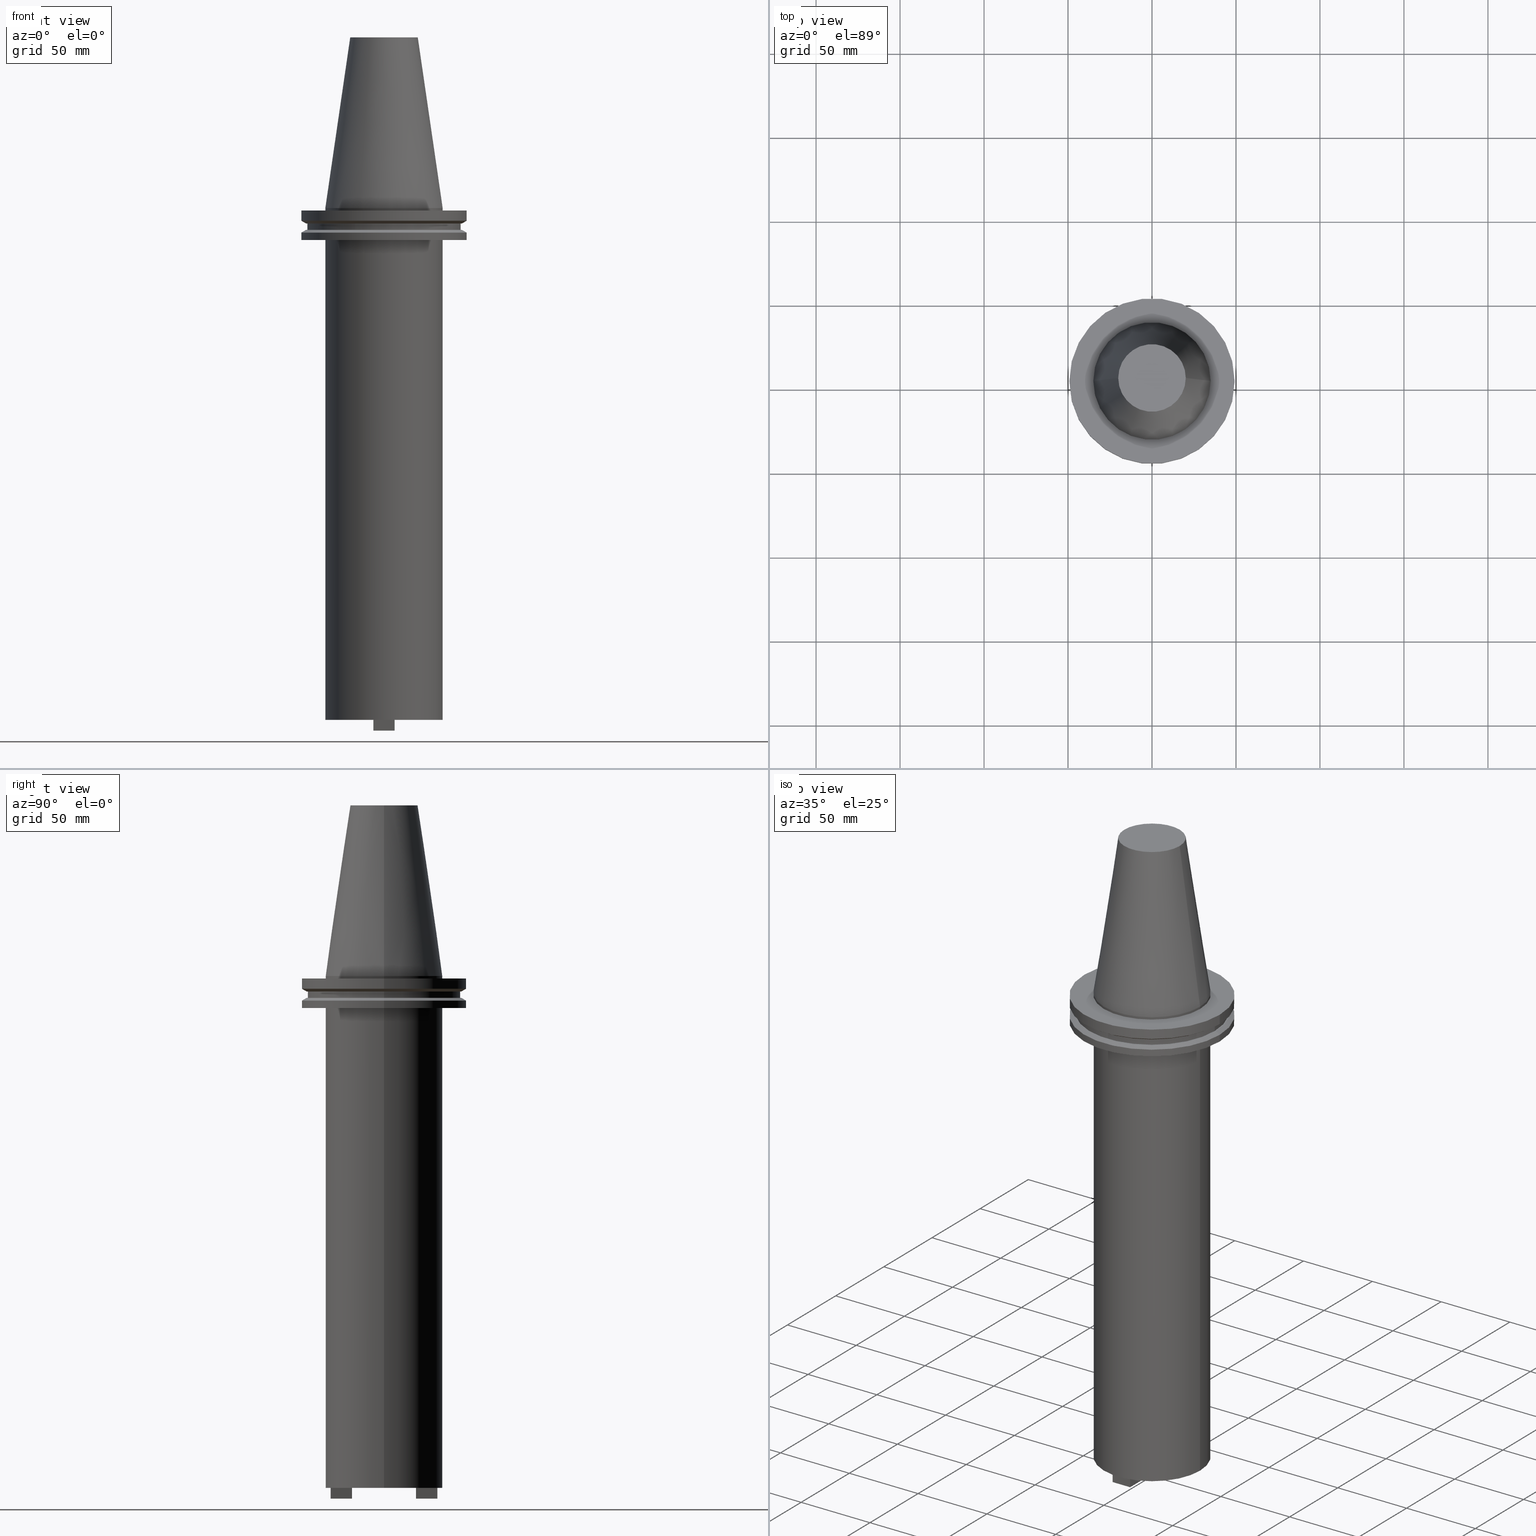
[diagram: canonical four-view strip — front | top / right | iso, engineering-drawing reading convention]
A machine part, canonical four-view strip (front | top / right | iso — engineering-drawing reading convention). The complete STEP part file that produces these views, byte-faithful:
ISO-10303-21;
HEADER;
FILE_DESCRIPTION (( 'STEP AP203' ),
    '1' );
FILE_NAME ('BCV50-SMC1_250-12.stp',
    '2022-03-03T20:06:21',
    ( '' ),
    ( '' ),
    'SwSTEP 2.0',
    'SolidWorks 2021',
    '' );
FILE_SCHEMA (( 'CONFIG_CONTROL_DESIGN' ));
ENDSEC;

DATA;
#1 = EDGE_CURVE ( 'NONE', #41, #351, #68, .T. ) ;
#2 = MECHANICAL_CONTEXT ( 'NONE', #242, 'mechanical' ) ;
#3 = DIRECTION ( 'NONE',  ( -1.000000000000000000, 0.000000000000000000, -0.000000000000000000 ) ) ;
#4 = CARTESIAN_POINT ( 'NONE',  ( -49.21500000000000341, 6.027099222003699404E-15, -7.602389855251287187 ) ) ;
#5 = EDGE_LOOP ( 'NONE', ( #1000, #111, #552, #128 ) ) ;
#6 = CONICAL_SURFACE ( 'NONE', #137, 49.21499999999998920, 1.047197551196554333 ) ;
#7 = DIRECTION ( 'NONE',  ( -0.000000000000000000, -0.000000000000000000, 1.000000000000000000 ) ) ;
#8 = CARTESIAN_POINT ( 'NONE',  ( -6.350000000000004974, 31.75000000000000000, -311.2000000000001023 ) ) ;
#9 = VERTEX_POINT ( 'NONE', #59 ) ;
#10 = ORIENTED_EDGE ( 'NONE', *, *, #115, .T. ) ;
#11 = CARTESIAN_POINT ( 'NONE',  ( 0.000000000000000000, 0.000000000000000000, -304.8000000000000114 ) ) ;
#12 = DIRECTION ( 'NONE',  ( 0.000000000000000000, 0.000000000000000000, -1.000000000000000000 ) ) ;
#13 = ORIENTED_EDGE ( 'NONE', *, *, #782, .T. ) ;
#14 = ADVANCED_FACE ( 'NONE', ( #835 ), #465, .F. ) ;
#15 = ORIENTED_EDGE ( 'NONE', *, *, #243, .T. ) ;
#16 = DIRECTION ( 'NONE',  ( 0.000000000000000000, 0.000000000000000000, -1.000000000000000000 ) ) ;
#17 = DIRECTION ( 'NONE',  ( 1.000000000000000000, 0.000000000000000000, 0.000000000000000000 ) ) ;
#18 = ADVANCED_FACE ( 'NONE', ( #601 ), #764, .T. ) ;
#19 = ADVANCED_FACE ( 'NONE', ( #1006 ), #909, .F. ) ;
#20 = CIRCLE ( 'NONE', #285, 20.10819343178871321 ) ;
#21 = EDGE_LOOP ( 'NONE', ( #589, #177 ) ) ;
#22 = DIRECTION ( 'NONE',  ( -0.000000000000000000, -0.000000000000000000, 1.000000000000000000 ) ) ;
#23 = VECTOR ( 'NONE', #58, 1000.000000000000000 ) ;
#24 = DIRECTION ( 'NONE',  ( 1.000000000000000000, 0.000000000000000000, 0.000000000000000000 ) ) ;
#25 = EDGE_LOOP ( 'NONE', ( #27, #526, #895, #732 ) ) ;
#26 = CARTESIAN_POINT ( 'NONE',  ( 49.21499999999998920, 0.000000000000000000, 101.5999999999999943 ) ) ;
#27 = ORIENTED_EDGE ( 'NONE', *, *, #969, .F. ) ;
#28 = ORIENTED_EDGE ( 'NONE', *, *, #534, .F. ) ;
#29 = EDGE_CURVE ( 'NONE', #796, #605, #301, .T. ) ;
#30 = CARTESIAN_POINT ( 'NONE',  ( 0.000000000000000000, 0.000000000000000000, 0.000000000000000000 ) ) ;
#31 = ORIENTED_EDGE ( 'NONE', *, *, #150, .F. ) ;
#32 = ORIENTED_EDGE ( 'NONE', *, *, #588, .F. ) ;
#33 = AXIS2_PLACEMENT_3D ( 'NONE', #640, #871, #175 ) ;
#34 = CIRCLE ( 'NONE', #401, 46.43919780457007818 ) ;
#35 = CYLINDRICAL_SURFACE ( 'NONE', #970, 49.21499999999999631 ) ;
#36 = VERTEX_POINT ( 'NONE', #768 ) ;
#37 = AXIS2_PLACEMENT_3D ( 'NONE', #678, #650, #607 ) ;
#38 = CARTESIAN_POINT ( 'NONE',  ( -6.350000000000003197, 19.04999999999999716, -311.2000000000001023 ) ) ;
#39 = AXIS2_PLACEMENT_3D ( 'NONE', #345, #555, #172 ) ;
#40 = CARTESIAN_POINT ( 'NONE',  ( 6.349999999999994316, 19.05000000000000426, -304.8000000000000682 ) ) ;
#41 = VERTEX_POINT ( 'NONE', #617 ) ;
#42 = DIRECTION ( 'NONE',  ( -1.000000000000000000, 0.000000000000000000, -0.000000000000000000 ) ) ;
#43 = EDGE_LOOP ( 'NONE', ( #31, #524, #453, #328 ) ) ;
#44 = LINE ( 'NONE', #109, #742 ) ;
#45 = ADVANCED_FACE ( 'NONE', ( #697 ), #222, .F. ) ;
#46 = DIRECTION ( 'NONE',  ( -0.000000000000000000, -0.000000000000000000, 1.000000000000000000 ) ) ;
#47 = DIRECTION ( 'NONE',  ( -1.365923996832131116E-16, 1.000000000000000000, -0.000000000000000000 ) ) ;
#48 = EDGE_LOOP ( 'NONE', ( #652, #461, #378, #762 ) ) ;
#49 = DIRECTION ( 'NONE',  ( -0.000000000000000000, -0.000000000000000000, 1.000000000000000000 ) ) ;
#50 = EDGE_CURVE ( 'NONE', #583, #361, #240, .T. ) ;
#51 = DIRECTION ( 'NONE',  ( 0.000000000000000000, -0.000000000000000000, 1.000000000000000000 ) ) ;
#52 = CARTESIAN_POINT ( 'NONE',  ( 0.000000000000000000, 0.000000000000000000, -14.65761014474876944 ) ) ;
#53 = ORIENTED_EDGE ( 'NONE', *, *, #802, .F. ) ;
#54 = DIRECTION ( 'NONE',  ( -0.000000000000000000, -0.000000000000000000, 1.000000000000000000 ) ) ;
#55 = VECTOR ( 'NONE', #201, 999.9999999999998863 ) ;
#56 = FACE_OUTER_BOUND ( 'NONE', #965, .T. ) ;
#57 = VERTEX_POINT ( 'NONE', #567 ) ;
#58 = DIRECTION ( 'NONE',  ( -0.000000000000000000, -0.000000000000000000, 1.000000000000000000 ) ) ;
#59 = CARTESIAN_POINT ( 'NONE',  ( -6.350000000000003197, 19.04999999999999716, -304.8000000000000682 ) ) ;
#60 = PLANE ( 'NONE',  #481 ) ;
#61 = CARTESIAN_POINT ( 'NONE',  ( 6.349999999999994316, 19.05000000000000426, -311.2000000000001023 ) ) ;
#62 = PERSON_AND_ORGANIZATION_ROLE ( 'creator' ) ;
#63 = ADVANCED_FACE ( 'NONE', ( #779 ), #644, .T. ) ;
#64 = ORIENTED_EDGE ( 'NONE', *, *, #29, .T. ) ;
#65 = PLANE ( 'NONE',  #987 ) ;
#66 = CARTESIAN_POINT ( 'NONE',  ( -6.350000000000004974, -31.75000000000000711, -311.2000000000001023 ) ) ;
#67 = COORDINATED_UNIVERSAL_TIME_OFFSET ( 6, 0, .BEHIND. ) ;
#68 = LINE ( 'NONE', #852, #347 ) ;
#69 = CARTESIAN_POINT ( 'NONE',  ( -34.92499999999999005, 4.277078946022130098E-15, 101.5999999999999943 ) ) ;
#70 = CONICAL_SURFACE ( 'NONE', #198, 49.21499999999998920, 1.047197551196554333 ) ;
#71 = VECTOR ( 'NONE', #392, 1000.000000000000000 ) ;
#72 = APPROVAL_DATE_TIME ( #778, #629 ) ;
#73 = DIRECTION ( 'NONE',  ( 0.000000000000000000, -0.000000000000000000, 1.000000000000000000 ) ) ;
#74 = CARTESIAN_POINT ( 'NONE',  ( 6.349999999999984546, -31.75000000000001421, -304.8000000000000682 ) ) ;
#75 = EDGE_CURVE ( 'NONE', #736, #583, #400, .T. ) ;
#76 = DIRECTION ( 'NONE',  ( 0.000000000000000000, 0.000000000000000000, -1.000000000000000000 ) ) ;
#77 = CARTESIAN_POINT ( 'NONE',  ( 0.000000000000000000, 0.000000000000000000, -14.65761014474876944 ) ) ;
#78 = ORIENTED_EDGE ( 'NONE', *, *, #29, .F. ) ;
#79 = DESIGN_CONTEXT ( 'detailed design', #314, 'design' ) ;
#80 = ADVANCED_FACE ( 'NONE', ( #329, #83 ), #253, .F. ) ;
#81 = EDGE_CURVE ( 'NONE', #99, #270, #710, .T. ) ;
#82 = COORDINATED_UNIVERSAL_TIME_OFFSET ( 6, 0, .BEHIND. ) ;
#83 = FACE_BOUND ( 'NONE', #227, .T. ) ;
#84 = CARTESIAN_POINT ( 'NONE',  ( 0.000000000000000000, 0.000000000000000000, 101.5999999999999801 ) ) ;
#85 = VECTOR ( 'NONE', #398, 1000.000000000000000 ) ;
#86 = VECTOR ( 'NONE', #448, 1000.000000000000000 ) ;
#87 = VECTOR ( 'NONE', #97, 1000.000000000000000 ) ;
#88 = ORIENTED_EDGE ( 'NONE', *, *, #373, .T. ) ;
#89 = CYLINDRICAL_SURFACE ( 'NONE', #985, 7.339999999999985647 ) ;
#90 = LINE ( 'NONE', #26, #304 ) ;
#91 = ORIENTED_EDGE ( 'NONE', *, *, #802, .T. ) ;
#92 = CARTESIAN_POINT ( 'NONE',  ( 0.000000000000000000, 0.000000000000000000, 0.000000000000000000 ) ) ;
#93 = ADVANCED_FACE ( 'NONE', ( #477 ), #922, .T. ) ;
#94 = DIRECTION ( 'NONE',  ( -1.000000000000000000, 0.000000000000000000, 0.000000000000000000 ) ) ;
#95 = ORIENTED_EDGE ( 'NONE', *, *, #124, .F. ) ;
#96 = DIRECTION ( 'NONE',  ( -1.000000000000000000, 0.000000000000000000, 0.000000000000000000 ) ) ;
#97 = DIRECTION ( 'NONE',  ( 1.365923996832132102E-16, -1.000000000000000000, 0.000000000000000000 ) ) ;
#98 = AXIS2_PLACEMENT_3D ( 'NONE', #670, #979, #217 ) ;
#99 = VERTEX_POINT ( 'NONE', #952 ) ;
#100 = CIRCLE ( 'NONE', #402, 49.21499999999999631 ) ;
#101 = DIRECTION ( 'NONE',  ( 1.000000000000000000, 0.000000000000000000, 0.000000000000000000 ) ) ;
#102 = ORIENTED_EDGE ( 'NONE', *, *, #415, .T. ) ;
#103 = ADVANCED_FACE ( 'NONE', ( #878 ), #391, .T. ) ;
#104 = ORIENTED_EDGE ( 'NONE', *, *, #553, .F. ) ;
#105 = DIRECTION ( 'NONE',  ( 0.8660254037844273833, 0.000000000000000000, 0.5000000000000195399 ) ) ;
#106 = ORIENTED_EDGE ( 'NONE', *, *, #426, .F. ) ;
#107 = DIRECTION ( 'NONE',  ( 1.000000000000000000, -1.092739197465706668E-15, 0.000000000000000000 ) ) ;
#108 = EDGE_LOOP ( 'NONE', ( #574, #894, #156, #522 ) ) ;
#109 = CARTESIAN_POINT ( 'NONE',  ( -6.350000000000004974, -31.75000000000000711, -311.2000000000001023 ) ) ;
#110 = DIRECTION ( 'NONE',  ( -0.000000000000000000, -0.000000000000000000, 1.000000000000000000 ) ) ;
#111 = ORIENTED_EDGE ( 'NONE', *, *, #158, .F. ) ;
#112 = CONICAL_SURFACE ( 'NONE', #497, 46.43919780457007818, 1.047197551196575205 ) ;
#113 = CIRCLE ( 'NONE', #466, 45.64500000000000313 ) ;
#114 = CARTESIAN_POINT ( 'NONE',  ( -6.350000000000004974, 31.75000000000000000, -304.8000000000000682 ) ) ;
#115 = EDGE_CURVE ( 'NONE', #36, #643, #613, .T. ) ;
#116 = ORIENTED_EDGE ( 'NONE', *, *, #748, .F. ) ;
#117 = CARTESIAN_POINT ( 'NONE',  ( 0.000000000000000000, 0.000000000000000000, -9.204999999999991189 ) ) ;
#118 = CYLINDRICAL_SURFACE ( 'NONE', #647, 45.64500000000000313 ) ;
#119 = ORIENTED_EDGE ( 'NONE', *, *, #748, .T. ) ;
#120 = CARTESIAN_POINT ( 'NONE',  ( 0.000000000000000000, 0.000000000000000000, -19.04999999999999716 ) ) ;
#121 = ORIENTED_EDGE ( 'NONE', *, *, #322, .F. ) ;
#122 = EDGE_CURVE ( 'NONE', #583, #736, #901, .T. ) ;
#123 = CARTESIAN_POINT ( 'NONE',  ( 0.000000000000000000, 0.000000000000000000, -304.8000000000000682 ) ) ;
#124 = EDGE_CURVE ( 'NONE', #36, #287, #1008, .T. ) ;
#125 = CARTESIAN_POINT ( 'NONE',  ( 7.339999999999985647, 0.000000000000000000, -35.04999999999999716 ) ) ;
#126 = ORIENTED_EDGE ( 'NONE', *, *, #502, .T. ) ;
#127 = DIRECTION ( 'NONE',  ( -0.000000000000000000, -0.000000000000000000, 1.000000000000000000 ) ) ;
#128 = ORIENTED_EDGE ( 'NONE', *, *, #264, .T. ) ;
#129 = DIRECTION ( 'NONE',  ( -0.000000000000000000, -0.000000000000000000, 1.000000000000000000 ) ) ;
#130 = VERTEX_POINT ( 'NONE', #934 ) ;
#131 = CARTESIAN_POINT ( 'NONE',  ( 0.000000000000000000, 0.000000000000000000, 101.5999999999999801 ) ) ;
#132 = ORIENTED_EDGE ( 'NONE', *, *, #292, .T. ) ;
#133 = CARTESIAN_POINT ( 'NONE',  ( 0.000000000000000000, 0.000000000000000000, 101.5999999999999943 ) ) ;
#134 = CARTESIAN_POINT ( 'NONE',  ( 0.000000000000000000, 34.92499999999999716, -35.04999999999999716 ) ) ;
#135 = AXIS2_PLACEMENT_3D ( 'NONE', #486, #73, #237 ) ;
#136 = LINE ( 'NONE', #275, #839 ) ;
#137 = AXIS2_PLACEMENT_3D ( 'NONE', #77, #1001, #151 ) ;
#138 =( GEOMETRIC_REPRESENTATION_CONTEXT ( 3 ) GLOBAL_UNCERTAINTY_ASSIGNED_CONTEXT ( ( #808 ) ) GLOBAL_UNIT_ASSIGNED_CONTEXT ( ( #817, #899, #771 ) ) REPRESENTATION_CONTEXT ( 'NONE', 'WORKASPACE' ) );
#139 = FACE_OUTER_BOUND ( 'NONE', #884, .T. ) ;
#140 = ADVANCED_FACE ( 'NONE', ( #231 ), #89, .F. ) ;
#141 = PERSON_AND_ORGANIZATION ( #717, #531 ) ;
#142 = DIRECTION ( 'NONE',  ( 1.365923996832130130E-16, 1.000000000000000000, 0.000000000000000000 ) ) ;
#143 = DIRECTION ( 'NONE',  ( 1.365923996832132102E-16, -1.000000000000000000, 0.000000000000000000 ) ) ;
#144 = CARTESIAN_POINT ( 'NONE',  ( 6.349999999999992539, 31.75000000000000000, -304.8000000000000682 ) ) ;
#145 = ORIENTED_EDGE ( 'NONE', *, *, #333, .F. ) ;
#146 = DIRECTION ( 'NONE',  ( -0.000000000000000000, -0.000000000000000000, 1.000000000000000000 ) ) ;
#147 = DIRECTION ( 'NONE',  ( 1.000000000000000000, 0.000000000000000000, 0.000000000000000000 ) ) ;
#148 = COORDINATED_UNIVERSAL_TIME_OFFSET ( 6, 0, .BEHIND. ) ;
#149 = DIRECTION ( 'NONE',  ( -0.000000000000000000, -0.000000000000000000, 1.000000000000000000 ) ) ;
#150 = EDGE_CURVE ( 'NONE', #344, #99, #543, .T. ) ;
#151 = DIRECTION ( 'NONE',  ( -1.000000000000000000, 0.000000000000000000, 0.000000000000000000 ) ) ;
#152 = VECTOR ( 'NONE', #212, 1000.000000000000000 ) ;
#153 = AXIS2_PLACEMENT_3D ( 'NONE', #848, #146, #632 ) ;
#154 = CARTESIAN_POINT ( 'NONE',  ( 6.349999999999992539, 31.75000000000000000, -311.2000000000001023 ) ) ;
#155 = CARTESIAN_POINT ( 'NONE',  ( -46.43919780457007818, 0.000000000000000000, -13.05499999999999794 ) ) ;
#156 = ORIENTED_EDGE ( 'NONE', *, *, #379, .F. ) ;
#157 = CC_DESIGN_PERSON_AND_ORGANIZATION_ASSIGNMENT ( #939, #62, ( #931 ) ) ;
#158 = EDGE_CURVE ( 'NONE', #99, #344, #819, .T. ) ;
#159 = PERSON_AND_ORGANIZATION_ROLE ( 'design_owner' ) ;
#160 = CARTESIAN_POINT ( 'NONE',  ( -49.21499999999998920, 6.027099222003697037E-15, -19.04999999999999716 ) ) ;
#161 = DIRECTION ( 'NONE',  ( 0.000000000000000000, 0.000000000000000000, -1.000000000000000000 ) ) ;
#162 = VERTEX_POINT ( 'NONE', #862 ) ;
#163 = ORIENTED_EDGE ( 'NONE', *, *, #520, .F. ) ;
#164 = DIRECTION ( 'NONE',  ( 1.000000000000000000, 0.000000000000000000, 0.000000000000000000 ) ) ;
#165 = FACE_OUTER_BOUND ( 'NONE', #572, .T. ) ;
#166 = VERTEX_POINT ( 'NONE', #160 ) ;
#167 = AXIS2_PLACEMENT_3D ( 'NONE', #827, #532, #664 ) ;
#168 = EDGE_CURVE ( 'NONE', #605, #992, #544, .T. ) ;
#169 = VECTOR ( 'NONE', #471, 1000.000000000000000 ) ;
#170 = ORIENTED_EDGE ( 'NONE', *, *, #738, .T. ) ;
#171 = DIRECTION ( 'NONE',  ( -0.000000000000000000, -0.000000000000000000, 1.000000000000000000 ) ) ;
#172 = DIRECTION ( 'NONE',  ( 1.000000000000000000, 0.000000000000000000, 0.000000000000000000 ) ) ;
#173 = ORIENTED_EDGE ( 'NONE', *, *, #864, .F. ) ;
#174 = ORIENTED_EDGE ( 'NONE', *, *, #150, .T. ) ;
#175 = DIRECTION ( 'NONE',  ( 1.000000000000000000, 0.000000000000000000, 0.000000000000000000 ) ) ;
#176 = CARTESIAN_POINT ( 'NONE',  ( -34.92499999999999716, 4.277078946022130887E-15, -19.04999999999999716 ) ) ;
#177 = ORIENTED_EDGE ( 'NONE', *, *, #704, .F. ) ;
#178 = PLANE ( 'NONE',  #1005 ) ;
#179 = ORIENTED_EDGE ( 'NONE', *, *, #575, .F. ) ;
#180 = EDGE_CURVE ( 'NONE', #41, #324, #947, .T. ) ;
#181 = AXIS2_PLACEMENT_3D ( 'NONE', #859, #76, #865 ) ;
#182 = AXIS2_PLACEMENT_3D ( 'NONE', #815, #413, #976 ) ;
#183 = EDGE_LOOP ( 'NONE', ( #501, #713, #211, #772 ) ) ;
#184 = DIRECTION ( 'NONE',  ( -0.000000000000000000, -0.000000000000000000, 1.000000000000000000 ) ) ;
#185 = ORIENTED_EDGE ( 'NONE', *, *, #738, .F. ) ;
#186 = EDGE_CURVE ( 'NONE', #643, #36, #709, .T. ) ;
#187 = ADVANCED_FACE ( 'NONE', ( #56 ), #112, .T. ) ;
#188 = ORIENTED_EDGE ( 'NONE', *, *, #534, .T. ) ;
#189 = CARTESIAN_POINT ( 'NONE',  ( -46.43919780457007818, 5.687161494633754392E-15, -9.204999999999991189 ) ) ;
#190 = ORIENTED_EDGE ( 'NONE', *, *, #447, .F. ) ;
#191 = DIRECTION ( 'NONE',  ( 0.000000000000000000, -0.000000000000000000, 1.000000000000000000 ) ) ;
#192 = EDGE_CURVE ( 'NONE', #324, #274, #723, .T. ) ;
#193 = EDGE_LOOP ( 'NONE', ( #163, #786, #747, #179 ) ) ;
#194 = LINE ( 'NONE', #372, #596 ) ;
#195 = ORIENTED_EDGE ( 'NONE', *, *, #379, .T. ) ;
#196 = CARTESIAN_POINT ( 'NONE',  ( 34.92499999999999005, 4.277078946022130098E-15, 0.000000000000000000 ) ) ;
#197 = DIRECTION ( 'NONE',  ( -0.000000000000000000, -0.000000000000000000, 1.000000000000000000 ) ) ;
#198 = AXIS2_PLACEMENT_3D ( 'NONE', #994, #209, #96 ) ;
#199 = ADVANCED_FACE ( 'NONE', ( #370 ), #70, .T. ) ;
#200 = VECTOR ( 'NONE', #844, 1000.000000000000000 ) ;
#201 = DIRECTION ( 'NONE',  ( -0.1443082272672999988, 0.000000000000000000, -0.9895327864921755756 ) ) ;
#202 = ORIENTED_EDGE ( 'NONE', *, *, #731, .T. ) ;
#203 = VECTOR ( 'NONE', #326, 1000.000000000000000 ) ;
#204 = DIRECTION ( 'NONE',  ( -0.000000000000000000, -0.000000000000000000, 1.000000000000000000 ) ) ;
#205 = FACE_BOUND ( 'NONE', #272, .T. ) ;
#206 = ORIENTED_EDGE ( 'NONE', *, *, #557, .F. ) ;
#207 = CARTESIAN_POINT ( 'NONE',  ( 6.349999999999994316, 19.05000000000000426, -311.2000000000001023 ) ) ;
#208 = DIRECTION ( 'NONE',  ( 1.000000000000000000, 0.000000000000000000, 0.000000000000000000 ) ) ;
#209 = DIRECTION ( 'NONE',  ( 0.000000000000000000, 0.000000000000000000, -1.000000000000000000 ) ) ;
#210 = DIRECTION ( 'NONE',  ( -0.000000000000000000, -0.000000000000000000, 1.000000000000000000 ) ) ;
#211 = ORIENTED_EDGE ( 'NONE', *, *, #124, .T. ) ;
#212 = DIRECTION ( 'NONE',  ( -1.365923996832131116E-16, 1.000000000000000000, -0.000000000000000000 ) ) ;
#213 = EDGE_CURVE ( 'NONE', #803, #457, #331, .T. ) ;
#214 = CARTESIAN_POINT ( 'NONE',  ( 34.92499999999999005, 0.000000000000000000, 101.5999999999999943 ) ) ;
#215 = DIRECTION ( 'NONE',  ( 0.000000000000000000, 0.000000000000000000, 1.000000000000000000 ) ) ;
#216 = ORIENTED_EDGE ( 'NONE', *, *, #75, .F. ) ;
#217 = DIRECTION ( 'NONE',  ( 1.000000000000000000, 0.000000000000000000, 0.000000000000000000 ) ) ;
#218 = AXIS2_PLACEMENT_3D ( 'NONE', #66, #299, #224 ) ;
#219 = LOCAL_TIME ( 14, 6, 21.00000000000000000, #918 ) ;
#220 = CARTESIAN_POINT ( 'NONE',  ( -45.64500000000000313, 5.589900314708094957E-15, -9.204999999999991189 ) ) ;
#221 = SECURITY_CLASSIFICATION_LEVEL ( 'unclassified' ) ;
#222 = CYLINDRICAL_SURFACE ( 'NONE', #855, 7.339999999999985647 ) ;
#223 = FACE_OUTER_BOUND ( 'NONE', #809, .T. ) ;
#224 = DIRECTION ( 'NONE',  ( 1.365923996832130130E-16, 1.000000000000000000, 0.000000000000000000 ) ) ;
#225 = ADVANCED_FACE ( 'NONE', ( #824 ), #529, .T. ) ;
#226 = PERSON_AND_ORGANIZATION_ROLE ( 'design_supplier' ) ;
#227 = EDGE_LOOP ( 'NONE', ( #946, #434 ) ) ;
#228 = LINE ( 'NONE', #853, #615 ) ;
#229 = CARTESIAN_POINT ( 'NONE',  ( 0.000000000000000000, 0.000000000000000000, 0.000000000000000000 ) ) ;
#230 = ADVANCED_FACE ( 'NONE', ( #685 ), #336, .T. ) ;
#231 = FACE_OUTER_BOUND ( 'NONE', #43, .T. ) ;
#232 = CARTESIAN_POINT ( 'NONE',  ( 49.21499999999998920, 0.000000000000000000, -19.04999999999999716 ) ) ;
#233 = VECTOR ( 'NONE', #624, 1000.000000000000000 ) ;
#234 = AXIS2_PLACEMENT_3D ( 'NONE', #52, #751, #286 ) ;
#235 = APPLICATION_PROTOCOL_DEFINITION ( 'international standard', 'config_control_design', 1994, #314 ) ;
#236 = ORIENTED_EDGE ( 'NONE', *, *, #673, .T. ) ;
#237 = DIRECTION ( 'NONE',  ( 1.000000000000000000, 0.000000000000000000, 0.000000000000000000 ) ) ;
#238 = DIRECTION ( 'NONE',  ( -0.000000000000000000, -0.000000000000000000, 1.000000000000000000 ) ) ;
#239 = ORIENTED_EDGE ( 'NONE', *, *, #553, .T. ) ;
#240 = LINE ( 'NONE', #720, #248 ) ;
#241 = FACE_OUTER_BOUND ( 'NONE', #436, .T. ) ;
#242 = APPLICATION_CONTEXT ( 'configuration controlled 3d designs of mechanical parts and assemblies' ) ;
#243 = EDGE_CURVE ( 'NONE', #57, #646, #295, .T. ) ;
#244 = VERTEX_POINT ( 'NONE', #506 ) ;
#245 = DIRECTION ( 'NONE',  ( 1.365923996832132102E-16, -1.000000000000000000, 0.000000000000000000 ) ) ;
#246 = FACE_BOUND ( 'NONE', #814, .T. ) ;
#247 = EDGE_LOOP ( 'NONE', ( #102, #609, #656, #756 ) ) ;
#248 = VECTOR ( 'NONE', #321, 1000.000000000000114 ) ;
#249 = AXIS2_PLACEMENT_3D ( 'NONE', #431, #51, #666 ) ;
#250 = CIRCLE ( 'NONE', #433, 49.21499999999999631 ) ;
#251 = APPROVAL_PERSON_ORGANIZATION ( #390, #629, #850 ) ;
#252 = ORIENTED_EDGE ( 'NONE', *, *, #633, .T. ) ;
#253 = PLANE ( 'NONE',  #135 ) ;
#254 = CARTESIAN_POINT ( 'NONE',  ( 46.43919780457007818, 5.857130358318725715E-15, -13.05499999999999794 ) ) ;
#255 = VERTEX_POINT ( 'NONE', #281 ) ;
#256 = ORIENTED_EDGE ( 'NONE', *, *, #625, .F. ) ;
#257 = EDGE_CURVE ( 'NONE', #735, #530, #972, .T. ) ;
#258 = CARTESIAN_POINT ( 'NONE',  ( 0.000000000000000000, 0.000000000000000000, -1.499999999999987566 ) ) ;
#259 = VERTEX_POINT ( 'NONE', #758 ) ;
#260 = ORIENTED_EDGE ( 'NONE', *, *, #396, .T. ) ;
#261 = ADVANCED_FACE ( 'NONE', ( #271 ), #582, .F. ) ;
#262 = PLANE ( 'NONE',  #334 ) ;
#263 = ORIENTED_EDGE ( 'NONE', *, *, #1, .T. ) ;
#264 = EDGE_CURVE ( 'NONE', #270, #739, #348, .T. ) ;
#265 = VECTOR ( 'NONE', #744, 1000.000000000000000 ) ;
#266 = CIRCLE ( 'NONE', #432, 20.10819343178871321 ) ;
#267 = ORIENTED_EDGE ( 'NONE', *, *, #75, .T. ) ;
#268 = AXIS2_PLACEMENT_3D ( 'NONE', #229, #215, #706 ) ;
#269 = LINE ( 'NONE', #599, #23 ) ;
#270 = VERTEX_POINT ( 'NONE', #125 ) ;
#271 = FACE_OUTER_BOUND ( 'NONE', #488, .T. ) ;
#272 = EDGE_LOOP ( 'NONE', ( #956, #346 ) ) ;
#273 = PLANE ( 'NONE',  #512 ) ;
#274 = VERTEX_POINT ( 'NONE', #40 ) ;
#275 = CARTESIAN_POINT ( 'NONE',  ( -6.350000000000004974, -31.75000000000000711, -311.2000000000001023 ) ) ;
#276 = ADVANCED_FACE ( 'NONE', ( #354, #205 ), #359, .F. ) ;
#277 = CARTESIAN_POINT ( 'NONE',  ( -6.350000000000004974, -31.75000000000000711, -311.2000000000001023 ) ) ;
#278 = VERTEX_POINT ( 'NONE', #277 ) ;
#279 = ORIENTED_EDGE ( 'NONE', *, *, #473, .T. ) ;
#280 = DIRECTION ( 'NONE',  ( 1.000000000000000000, 0.000000000000000000, 0.000000000000000000 ) ) ;
#281 = CARTESIAN_POINT ( 'NONE',  ( -34.92499999999999005, 4.277078946022130098E-15, -1.499999999999987566 ) ) ;
#282 = EDGE_LOOP ( 'NONE', ( #811, #569, #505, #484 ) ) ;
#283 = VECTOR ( 'NONE', #142, 1000.000000000000000 ) ;
#284 = ADVANCED_BREP_SHAPE_REPRESENTATION ( 'BCV50-SMC1_250-12', ( #674, #268 ), #138 ) ;
#285 = AXIS2_PLACEMENT_3D ( 'NONE', #84, #619, #711 ) ;
#286 = DIRECTION ( 'NONE',  ( 1.000000000000000000, 0.000000000000000000, 0.000000000000000000 ) ) ;
#287 = VERTEX_POINT ( 'NONE', #587 ) ;
#288 = CIRCLE ( 'NONE', #234, 49.21499999999998920 ) ;
#289 = CARTESIAN_POINT ( 'NONE',  ( 6.349999999999984546, -19.05000000000000782, -311.2000000000001023 ) ) ;
#290 = DIRECTION ( 'NONE',  ( -0.000000000000000000, -0.000000000000000000, 1.000000000000000000 ) ) ;
#291 = DIRECTION ( 'NONE',  ( -1.000000000000000000, -5.463695987328527423E-16, 0.000000000000000000 ) ) ;
#292 = EDGE_CURVE ( 'NONE', #657, #951, #266, .T. ) ;
#293 = EDGE_LOOP ( 'NONE', ( #64, #104, #28, #126 ) ) ;
#294 = FACE_OUTER_BOUND ( 'NONE', #880, .T. ) ;
#295 = LINE ( 'NONE', #491, #86 ) ;
#296 = APPROVAL_DATE_TIME ( #377, #388 ) ;
#297 = ORIENTED_EDGE ( 'NONE', *, *, #168, .F. ) ;
#298 = LINE ( 'NONE', #196, #725 ) ;
#299 = DIRECTION ( 'NONE',  ( 1.000000000000000000, -1.365923996832130130E-16, 0.000000000000000000 ) ) ;
#300 = AXIS2_PLACEMENT_3D ( 'NONE', #11, #325, #788 ) ;
#301 = LINE ( 'NONE', #830, #283 ) ;
#302 = VECTOR ( 'NONE', #989, 1000.000000000000000 ) ;
#303 = CYLINDRICAL_SURFACE ( 'NONE', #840, 34.92499999999999005 ) ;
#304 = VECTOR ( 'NONE', #866, 1000.000000000000000 ) ;
#305 = ADVANCED_FACE ( 'NONE', ( #511 ), #118, .T. ) ;
#306 = LINE ( 'NONE', #463, #759 ) ;
#307 = DATE_AND_TIME ( #456, #349 ) ;
#308 = DIRECTION ( 'NONE',  ( -1.000000000000000000, -5.463695987328527423E-16, 0.000000000000000000 ) ) ;
#309 = LINE ( 'NONE', #394, #169 ) ;
#310 = CARTESIAN_POINT ( 'NONE',  ( -7.340000000000006075, 8.988907505741579754E-16, -304.8000000000000114 ) ) ;
#311 = EDGE_CURVE ( 'NONE', #974, #351, #905, .T. ) ;
#312 = APPROVAL_STATUS ( 'not_yet_approved' ) ;
#313 = CARTESIAN_POINT ( 'NONE',  ( 49.21499999999999631, 0.000000000000000000, 101.5999999999999943 ) ) ;
#314 = APPLICATION_CONTEXT ( 'configuration controlled 3d designs of mechanical parts and assemblies' ) ;
#315 = DIRECTION ( 'NONE',  ( -1.000000000000000000, 0.000000000000000000, -0.000000000000000000 ) ) ;
#316 = DATE_TIME_ROLE ( 'creation_date' ) ;
#317 = DIRECTION ( 'NONE',  ( -0.000000000000000000, -0.000000000000000000, 1.000000000000000000 ) ) ;
#318 = CARTESIAN_POINT ( 'NONE',  ( 6.349999999999992539, 31.75000000000000000, -311.2000000000001023 ) ) ;
#319 = AXIS2_PLACEMENT_3D ( 'NONE', #702, #317, #164 ) ;
#320 = VECTOR ( 'NONE', #475, 1000.000000000000000 ) ;
#321 = DIRECTION ( 'NONE',  ( -0.8660254037844169472, 0.000000000000000000, -0.5000000000000375255 ) ) ;
#322 = EDGE_CURVE ( 'NONE', #166, #361, #442, .T. ) ;
#323 = CARTESIAN_POINT ( 'NONE',  ( 0.000000000000000000, 0.000000000000000000, -9.204999999999991189 ) ) ;
#324 = VERTEX_POINT ( 'NONE', #61 ) ;
#325 = DIRECTION ( 'NONE',  ( -0.000000000000000000, -0.000000000000000000, 1.000000000000000000 ) ) ;
#326 = DIRECTION ( 'NONE',  ( -0.000000000000000000, -1.000000000000000000, -0.000000000000000000 ) ) ;
#327 = ORIENTED_EDGE ( 'NONE', *, *, #213, .T. ) ;
#328 = ORIENTED_EDGE ( 'NONE', *, *, #81, .F. ) ;
#329 = FACE_OUTER_BOUND ( 'NONE', #21, .T. ) ;
#330 = CARTESIAN_POINT ( 'NONE',  ( 6.349999999999984546, -31.75000000000000711, -311.2000000000001023 ) ) ;
#331 = CIRCLE ( 'NONE', #383, 34.92499999999999005 ) ;
#332 = CIRCLE ( 'NONE', #856, 7.339999999999985647 ) ;
#333 = EDGE_CURVE ( 'NONE', #57, #162, #968, .T. ) ;
#334 = AXIS2_PLACEMENT_3D ( 'NONE', #493, #651, #406 ) ;
#335 = ORIENTED_EDGE ( 'NONE', *, *, #908, .F. ) ;
#336 = CYLINDRICAL_SURFACE ( 'NONE', #37, 45.64500000000000313 ) ;
#337 = CARTESIAN_POINT ( 'NONE',  ( 46.43919780457007818, 0.000000000000000000, -9.204999999999991189 ) ) ;
#338 = ORIENTED_EDGE ( 'NONE', *, *, #598, .F. ) ;
#339 = ADVANCED_FACE ( 'NONE', ( #998 ), #690, .F. ) ;
#340 = EDGE_LOOP ( 'NONE', ( #145, #791 ) ) ;
#341 = ADVANCED_FACE ( 'NONE', ( #838 ), #612, .T. ) ;
#342 = DIRECTION ( 'NONE',  ( -0.000000000000000000, -0.000000000000000000, 1.000000000000000000 ) ) ;
#343 = ORIENTED_EDGE ( 'NONE', *, *, #180, .T. ) ;
#344 = VERTEX_POINT ( 'NONE', #310 ) ;
#345 = CARTESIAN_POINT ( 'NONE',  ( 0.000000000000000000, 0.000000000000000000, 101.5999999999999943 ) ) ;
#346 = ORIENTED_EDGE ( 'NONE', *, *, #575, .T. ) ;
#347 = VECTOR ( 'NONE', #149, 1000.000000000000000 ) ;
#348 = CIRCLE ( 'NONE', #577, 7.339999999999985647 ) ;
#349 = LOCAL_TIME ( 14, 6, 21.00000000000000000, #616 ) ;
#350 = CC_DESIGN_SECURITY_CLASSIFICATION ( #564, ( #926 ) ) ;
#351 = VERTEX_POINT ( 'NONE', #144 ) ;
#352 = EDGE_CURVE ( 'NONE', #324, #412, #770, .T. ) ;
#353 = CARTESIAN_POINT ( 'NONE',  ( -6.350000000000003197, -19.04999999999999361, -311.2000000000001023 ) ) ;
#354 = FACE_OUTER_BOUND ( 'NONE', #875, .T. ) ;
#355 = ORIENTED_EDGE ( 'NONE', *, *, #502, .F. ) ;
#356 = DIRECTION ( 'NONE',  ( 1.000000000000000000, 0.000000000000000000, 0.000000000000000000 ) ) ;
#357 = VERTEX_POINT ( 'NONE', #220 ) ;
#358 = DIRECTION ( 'NONE',  ( 1.000000000000000000, 0.000000000000000000, 0.000000000000000000 ) ) ;
#359 = PLANE ( 'NONE',  #249 ) ;
#360 = PLANE ( 'NONE',  #953 ) ;
#361 = VERTEX_POINT ( 'NONE', #389 ) ;
#362 = PLANE ( 'NONE',  #167 ) ;
#363 = DIRECTION ( 'NONE',  ( 1.000000000000000000, 0.000000000000000000, 0.000000000000000000 ) ) ;
#364 = EDGE_CURVE ( 'NONE', #558, #803, #533, .T. ) ;
#365 = VECTOR ( 'NONE', #789, 1000.000000000000000 ) ;
#366 = CARTESIAN_POINT ( 'NONE',  ( 20.10819343178871321, 3.369811209154858606E-15, 101.5999999999999801 ) ) ;
#367 = ORIENTED_EDGE ( 'NONE', *, *, #50, .F. ) ;
#368 = AXIS2_PLACEMENT_3D ( 'NONE', #323, #1007, #637 ) ;
#369 = CYLINDRICAL_SURFACE ( 'NONE', #950, 49.21499999999998920 ) ;
#370 = FACE_OUTER_BOUND ( 'NONE', #663, .T. ) ;
#371 = ADVANCED_FACE ( 'NONE', ( #139 ), #381, .T. ) ;
#372 = CARTESIAN_POINT ( 'NONE',  ( 6.349999999999984546, -19.05000000000000782, -311.2000000000001023 ) ) ;
#373 = EDGE_CURVE ( 'NONE', #259, #278, #306, .T. ) ;
#374 = DIRECTION ( 'NONE',  ( -0.000000000000000000, -0.000000000000000000, 1.000000000000000000 ) ) ;
#375 = CARTESIAN_POINT ( 'NONE',  ( 6.349999999999992539, 31.75000000000000000, -311.2000000000001023 ) ) ;
#376 = CARTESIAN_POINT ( 'NONE',  ( 0.000000000000000000, 0.000000000000000000, -304.8000000000000682 ) ) ;
#377 = DATE_AND_TIME ( #397, #971 ) ;
#378 = ORIENTED_EDGE ( 'NONE', *, *, #816, .F. ) ;
#379 = EDGE_CURVE ( 'NONE', #412, #961, #538, .T. ) ;
#380 = DIRECTION ( 'NONE',  ( -0.000000000000000000, -0.000000000000000000, 1.000000000000000000 ) ) ;
#381 = CYLINDRICAL_SURFACE ( 'NONE', #793, 49.21499999999998920 ) ;
#382 = CALENDAR_DATE ( 2022, 3, 3 ) ;
#383 = AXIS2_PLACEMENT_3D ( 'NONE', #897, #290, #980 ) ;
#384 = CARTESIAN_POINT ( 'NONE',  ( 0.000000000000000000, 0.000000000000000000, 101.5999999999999943 ) ) ;
#385 = AXIS2_PLACEMENT_3D ( 'NONE', #123, #689, #765 ) ;
#386 = DIRECTION ( 'NONE',  ( 1.000000000000000000, 0.000000000000000000, 0.000000000000000000 ) ) ;
#387 = VECTOR ( 'NONE', #890, 1000.000000000000000 ) ;
#388 = APPROVAL ( #312, 'UNSPECIFIED' ) ;
#389 = CARTESIAN_POINT ( 'NONE',  ( -49.21499999999998920, 6.027099222003697037E-15, -14.65761014474876944 ) ) ;
#390 = PERSON_AND_ORGANIZATION ( #717, #531 ) ;
#391 = CYLINDRICAL_SURFACE ( 'NONE', #33, 34.92499999999999716 ) ;
#392 = DIRECTION ( 'NONE',  ( 1.000000000000000000, -0.000000000000000000, -0.000000000000000000 ) ) ;
#393 = CARTESIAN_POINT ( 'NONE',  ( 0.000000000000000000, 0.000000000000000000, -13.05499999999999794 ) ) ;
#394 = CARTESIAN_POINT ( 'NONE',  ( 6.349999999999984546, -19.05000000000000782, -311.2000000000001023 ) ) ;
#395 = ORIENTED_EDGE ( 'NONE', *, *, #396, .F. ) ;
#396 = EDGE_CURVE ( 'NONE', #992, #597, #527, .T. ) ;
#397 = CALENDAR_DATE ( 2022, 3, 3 ) ;
#398 = DIRECTION ( 'NONE',  ( 1.000000000000000000, -1.092739197465706471E-15, -0.000000000000000000 ) ) ;
#399 = CARTESIAN_POINT ( 'NONE',  ( -20.10819343178871321, 0.000000000000000000, 101.5999999999999801 ) ) ;
#400 = CIRCLE ( 'NONE', #628, 46.43919780457007818 ) ;
#401 = AXIS2_PLACEMENT_3D ( 'NONE', #117, #753, #280 ) ;
#402 = AXIS2_PLACEMENT_3D ( 'NONE', #258, #342, #101 ) ;
#403 = LOCAL_TIME ( 14, 6, 21.00000000000000000, #148 ) ;
#404 = ORIENTED_EDGE ( 'NONE', *, *, #192, .T. ) ;
#405 = DIRECTION ( 'NONE',  ( -0.000000000000000000, -0.000000000000000000, 1.000000000000000000 ) ) ;
#406 = DIRECTION ( 'NONE',  ( -1.365923996832131609E-16, 1.000000000000000000, 0.000000000000000000 ) ) ;
#407 = VERTEX_POINT ( 'NONE', #289 ) ;
#408 = ORIENTED_EDGE ( 'NONE', *, *, #115, .F. ) ;
#409 = CARTESIAN_POINT ( 'NONE',  ( 0.000000000000000000, 0.000000000000000000, -13.05499999999999794 ) ) ;
#410 = CARTESIAN_POINT ( 'NONE',  ( 0.000000000000000000, 0.000000000000000000, -19.04999999999999716 ) ) ;
#411 = EDGE_CURVE ( 'NONE', #739, #270, #332, .T. ) ;
#412 = VERTEX_POINT ( 'NONE', #516 ) ;
#413 = DIRECTION ( 'NONE',  ( -0.000000000000000000, -0.000000000000000000, 1.000000000000000000 ) ) ;
#414 = FACE_BOUND ( 'NONE', #443, .T. ) ;
#415 = EDGE_CURVE ( 'NONE', #558, #255, #416, .T. ) ;
#416 = CIRCLE ( 'NONE', #98, 34.92499999999999005 ) ;
#417 = ADVANCED_FACE ( 'NONE', ( #610 ), #60, .F. ) ;
#418 = CIRCLE ( 'NONE', #726, 34.92499999999999716 ) ;
#419 = ORIENTED_EDGE ( 'NONE', *, *, #352, .T. ) ;
#420 = LINE ( 'NONE', #804, #872 ) ;
#421 = ORIENTED_EDGE ( 'NONE', *, *, #990, .F. ) ;
#422 = VERTEX_POINT ( 'NONE', #602 ) ;
#423 = LINE ( 'NONE', #330, #203 ) ;
#424 = EDGE_LOOP ( 'NONE', ( #10, #869, #53, #95 ) ) ;
#425 = ORIENTED_EDGE ( 'NONE', *, *, #851, .T. ) ;
#426 = EDGE_CURVE ( 'NONE', #422, #676, #34, .T. ) ;
#427 = CARTESIAN_POINT ( 'NONE',  ( 6.349999999999984546, -19.05000000000001137, -304.8000000000000682 ) ) ;
#428 = ORIENTED_EDGE ( 'NONE', *, *, #50, .T. ) ;
#429 = CARTESIAN_POINT ( 'NONE',  ( -34.92499999999999005, 0.000000000000000000, 0.000000000000000000 ) ) ;
#430 = VECTOR ( 'NONE', #245, 1000.000000000000000 ) ;
#431 = CARTESIAN_POINT ( 'NONE',  ( 0.000000000000000000, 46.43919780457007818, -9.204999999999998295 ) ) ;
#432 = AXIS2_PLACEMENT_3D ( 'NONE', #131, #197, #672 ) ;
#433 = AXIS2_PLACEMENT_3D ( 'NONE', #560, #801, #24 ) ;
#434 = ORIENTED_EDGE ( 'NONE', *, *, #733, .T. ) ;
#435 = CARTESIAN_POINT ( 'NONE',  ( 0.000000000000000000, 0.000000000000000000, -13.05499999999999794 ) ) ;
#436 = EDGE_LOOP ( 'NONE', ( #216, #712, #667, #367 ) ) ;
#437 = FACE_OUTER_BOUND ( 'NONE', #439, .T. ) ;
#438 = CARTESIAN_POINT ( 'NONE',  ( 6.349999999999994316, 19.05000000000000426, -311.2000000000001023 ) ) ;
#439 = EDGE_LOOP ( 'NONE', ( #188, #556, #202, #88 ) ) ;
#440 = CARTESIAN_POINT ( 'NONE',  ( 0.000000000000000000, 0.000000000000000000, -1.499999999999987566 ) ) ;
#441 = EDGE_CURVE ( 'NONE', #162, #57, #631, .T. ) ;
#442 = LINE ( 'NONE', #700, #660 ) ;
#443 = EDGE_LOOP ( 'NONE', ( #173, #338 ) ) ;
#444 = DIRECTION ( 'NONE',  ( -1.092739197465706668E-15, -1.000000000000000000, 0.000000000000000000 ) ) ;
#445 = EDGE_LOOP ( 'NONE', ( #185, #958, #15, #659 ) ) ;
#446 = DIRECTION ( 'NONE',  ( -0.000000000000000000, -0.000000000000000000, 1.000000000000000000 ) ) ;
#447 = EDGE_CURVE ( 'NONE', #951, #803, #298, .T. ) ;
#448 = DIRECTION ( 'NONE',  ( -0.000000000000000000, -0.000000000000000000, 1.000000000000000000 ) ) ;
#449 = CC_DESIGN_PERSON_AND_ORGANIZATION_ASSIGNMENT ( #927, #226, ( #926 ) ) ;
#450 = EDGE_LOOP ( 'NONE', ( #579, #174 ) ) ;
#451 = AXIS2_PLACEMENT_3D ( 'NONE', #586, #896, #509 ) ;
#452 = DIRECTION ( 'NONE',  ( -0.000000000000000000, -0.000000000000000000, 1.000000000000000000 ) ) ;
#453 = ORIENTED_EDGE ( 'NONE', *, *, #411, .T. ) ;
#454 = LINE ( 'NONE', #353, #776 ) ;
#455 = CARTESIAN_POINT ( 'NONE',  ( 0.000000000000000000, 0.000000000000000000, 101.5999999999999943 ) ) ;
#456 = CALENDAR_DATE ( 2022, 3, 3 ) ;
#457 = VERTEX_POINT ( 'NONE', #429 ) ;
#458 = CARTESIAN_POINT ( 'NONE',  ( -6.350000000000003197, -19.04999999999999716, -304.8000000000000682 ) ) ;
#459 = DIRECTION ( 'NONE',  ( 1.000000000000000000, 0.000000000000000000, 0.000000000000000000 ) ) ;
#460 = CC_DESIGN_PERSON_AND_ORGANIZATION_ASSIGNMENT ( #542, #159, ( #490 ) ) ;
#461 = ORIENTED_EDGE ( 'NONE', *, *, #923, .F. ) ;
#462 = PLANE ( 'NONE',  #483 ) ;
#463 = CARTESIAN_POINT ( 'NONE',  ( 6.349999999999984546, -31.75000000000000711, -311.2000000000001023 ) ) ;
#464 = CALENDAR_DATE ( 2022, 3, 3 ) ;
#465 = PLANE ( 'NONE',  #921 ) ;
#466 = AXIS2_PLACEMENT_3D ( 'NONE', #986, #129, #358 ) ;
#467 = CARTESIAN_POINT ( 'NONE',  ( -6.350000000000003197, -19.04999999999999361, -311.2000000000001023 ) ) ;
#468 = AXIS2_PLACEMENT_3D ( 'NONE', #834, #452, #675 ) ;
#469 = APPROVAL_ROLE ( '' ) ;
#470 = CARTESIAN_POINT ( 'NONE',  ( 6.349999999999984546, -19.05000000000000782, -304.8000000000000682 ) ) ;
#471 = DIRECTION ( 'NONE',  ( -0.000000000000000000, -0.000000000000000000, 1.000000000000000000 ) ) ;
#472 = ORIENTED_EDGE ( 'NONE', *, *, #625, .T. ) ;
#473 = EDGE_CURVE ( 'NONE', #255, #558, #1003, .T. ) ;
#474 = CARTESIAN_POINT ( 'NONE',  ( 0.000000000000000000, 0.000000000000000000, -304.8000000000000114 ) ) ;
#475 = DIRECTION ( 'NONE',  ( -0.000000000000000000, -0.000000000000000000, 1.000000000000000000 ) ) ;
#476 = ORIENTED_EDGE ( 'NONE', *, *, #957, .F. ) ;
#477 = FACE_OUTER_BOUND ( 'NONE', #913, .T. ) ;
#478 = AXIS2_PLACEMENT_3D ( 'NONE', #940, #16, #3 ) ;
#479 = FACE_OUTER_BOUND ( 'NONE', #108, .T. ) ;
#480 = ORIENTED_EDGE ( 'NONE', *, *, #292, .F. ) ;
#481 = AXIS2_PLACEMENT_3D ( 'NONE', #375, #820, #997 ) ;
#482 = VECTOR ( 'NONE', #828, 1000.000000000000000 ) ;
#483 = AXIS2_PLACEMENT_3D ( 'NONE', #318, #785, #143 ) ;
#484 = ORIENTED_EDGE ( 'NONE', *, *, #257, .F. ) ;
#485 = ADVANCED_FACE ( 'NONE', ( #437 ), #362, .F. ) ;
#486 = CARTESIAN_POINT ( 'NONE',  ( 0.000000000000000000, 49.21499999999998920, -19.04999999999999716 ) ) ;
#487 = CARTESIAN_POINT ( 'NONE',  ( 0.000000000000000000, 45.64500000000000313, -13.05499999999999794 ) ) ;
#488 = EDGE_LOOP ( 'NONE', ( #119, #355, #581, #639 ) ) ;
#489 = EDGE_LOOP ( 'NONE', ( #977, #503, #932, #404 ) ) ;
#490 = PRODUCT ( 'BCV50-SMC1_250-12', 'BCV50-SMC1_250-12', '', ( #2 ) ) ;
#491 = CARTESIAN_POINT ( 'NONE',  ( 34.92499999999999716, 0.000000000000000000, 101.5999999999999943 ) ) ;
#492 = CC_DESIGN_PERSON_AND_ORGANIZATION_ASSIGNMENT ( #783, #846, ( #564 ) ) ;
#493 = CARTESIAN_POINT ( 'NONE',  ( -6.350000000000004974, 31.75000000000000000, -311.2000000000001023 ) ) ;
#494 = ORIENTED_EDGE ( 'NONE', *, *, #760, .F. ) ;
#495 = DIRECTION ( 'NONE',  ( 0.000000000000000000, -0.000000000000000000, 1.000000000000000000 ) ) ;
#496 = EDGE_LOOP ( 'NONE', ( #805, #279, #847, #206 ) ) ;
#497 = AXIS2_PLACEMENT_3D ( 'NONE', #800, #750, #911 ) ;
#498 = CIRCLE ( 'NONE', #634, 49.21499999999998920 ) ;
#499 = ORIENTED_EDGE ( 'NONE', *, *, #122, .T. ) ;
#500 = CARTESIAN_POINT ( 'NONE',  ( -7.339999999999985647, 8.988907505741556088E-16, -35.04999999999999716 ) ) ;
#501 = ORIENTED_EDGE ( 'NONE', *, *, #715, .F. ) ;
#502 = EDGE_CURVE ( 'NONE', #278, #796, #44, .T. ) ;
#503 = ORIENTED_EDGE ( 'NONE', *, *, #546, .F. ) ;
#504 = DIRECTION ( 'NONE',  ( -0.8660254037844273833, 1.060575238724893110E-16, 0.5000000000000195399 ) ) ;
#505 = ORIENTED_EDGE ( 'NONE', *, *, #665, .F. ) ;
#506 = CARTESIAN_POINT ( 'NONE',  ( 49.21499999999998920, 0.000000000000000000, -14.65761014474876944 ) ) ;
#507 = CARTESIAN_POINT ( 'NONE',  ( 6.349999999999994316, 19.05000000000000426, -304.8000000000000682 ) ) ;
#508 = ORIENTED_EDGE ( 'NONE', *, *, #1, .F. ) ;
#509 = DIRECTION ( 'NONE',  ( 1.000000000000000000, 0.000000000000000000, 0.000000000000000000 ) ) ;
#510 = VECTOR ( 'NONE', #943, 1000.000000000000000 ) ;
#511 = FACE_OUTER_BOUND ( 'NONE', #193, .T. ) ;
#512 = AXIS2_PLACEMENT_3D ( 'NONE', #912, #525, #42 ) ;
#513 = LINE ( 'NONE', #518, #661 ) ;
#514 = ADVANCED_FACE ( 'NONE', ( #294 ), #369, .T. ) ;
#515 = EDGE_LOOP ( 'NONE', ( #887, #566 ) ) ;
#516 = CARTESIAN_POINT ( 'NONE',  ( -6.350000000000003197, 19.04999999999999716, -311.2000000000001023 ) ) ;
#517 = CARTESIAN_POINT ( 'NONE',  ( 6.349999999999992539, 31.75000000000000000, -304.8000000000000682 ) ) ;
#518 = CARTESIAN_POINT ( 'NONE',  ( 49.21499999999998920, 6.027099222003697037E-15, -14.65761014474876944 ) ) ;
#519 = DIRECTION ( 'NONE',  ( -5.463695987328527423E-16, 1.000000000000000000, 0.000000000000000000 ) ) ;
#520 = EDGE_CURVE ( 'NONE', #130, #357, #915, .T. ) ;
#521 = DIRECTION ( 'NONE',  ( 0.1443082272672999988, 1.767266086135277066E-17, -0.9895327864921755756 ) ) ;
#522 = ORIENTED_EDGE ( 'NONE', *, *, #546, .T. ) ;
#523 = CARTESIAN_POINT ( 'NONE',  ( 0.000000000000000000, 0.000000000000000000, -35.04999999999999716 ) ) ;
#524 = ORIENTED_EDGE ( 'NONE', *, *, #881, .T. ) ;
#525 = DIRECTION ( 'NONE',  ( 0.000000000000000000, 0.000000000000000000, -1.000000000000000000 ) ) ;
#526 = ORIENTED_EDGE ( 'NONE', *, *, #426, .T. ) ;
#527 = LINE ( 'NONE', #757, #925 ) ;
#528 = DIRECTION ( 'NONE',  ( -0.000000000000000000, -0.000000000000000000, 1.000000000000000000 ) ) ;
#529 = CONICAL_SURFACE ( 'NONE', #182, 46.43919780457007818, 1.047197551196575205 ) ;
#530 = VERTEX_POINT ( 'NONE', #902 ) ;
#531 = ORGANIZATION ( 'UNSPECIFIED', 'UNSPECIFIED', '' ) ;
#532 = DIRECTION ( 'NONE',  ( 0.000000000000000000, -0.000000000000000000, 1.000000000000000000 ) ) ;
#533 = LINE ( 'NONE', #214, #200 ) ;
#534 = EDGE_CURVE ( 'NONE', #278, #635, #136, .T. ) ;
#535 = APPLICATION_PROTOCOL_DEFINITION ( 'international standard', 'config_control_design', 1994, #242 ) ;
#536 = EDGE_LOOP ( 'NONE', ( #91, #13 ) ) ;
#537 = CARTESIAN_POINT ( 'NONE',  ( 0.000000000000000000, 0.000000000000000000, -13.05499999999999794 ) ) ;
#538 = LINE ( 'NONE', #775, #152 ) ;
#539 = APPROVAL_STATUS ( 'not_yet_approved' ) ;
#540 = ORIENTED_EDGE ( 'NONE', *, *, #333, .T. ) ;
#541 = DIRECTION ( 'NONE',  ( -0.000000000000000000, -0.000000000000000000, 1.000000000000000000 ) ) ;
#542 = PERSON_AND_ORGANIZATION ( #717, #531 ) ;
#543 = CIRCLE ( 'NONE', #936, 7.340000000000006075 ) ;
#544 = LINE ( 'NONE', #470, #85 ) ;
#545 = AXIS2_PLACEMENT_3D ( 'NONE', #537, #238, #547 ) ;
#546 = EDGE_CURVE ( 'NONE', #412, #9, #677, .T. ) ;
#547 = DIRECTION ( 'NONE',  ( 1.000000000000000000, 0.000000000000000000, 0.000000000000000000 ) ) ;
#548 = AXIS2_PLACEMENT_3D ( 'NONE', #942, #380, #386 ) ;
#549 = DATE_AND_TIME ( #999, #219 ) ;
#550 = DIRECTION ( 'NONE',  ( -0.000000000000000000, -0.000000000000000000, 1.000000000000000000 ) ) ;
#551 = FACE_BOUND ( 'NONE', #515, .T. ) ;
#552 = ORIENTED_EDGE ( 'NONE', *, *, #81, .T. ) ;
#553 = EDGE_CURVE ( 'NONE', #635, #605, #454, .T. ) ;
#554 = DIRECTION ( 'NONE',  ( -0.000000000000000000, -0.000000000000000000, 1.000000000000000000 ) ) ;
#555 = DIRECTION ( 'NONE',  ( -0.000000000000000000, -0.000000000000000000, 1.000000000000000000 ) ) ;
#556 = ORIENTED_EDGE ( 'NONE', *, *, #990, .T. ) ;
#557 = EDGE_CURVE ( 'NONE', #457, #803, #868, .T. ) ;
#558 = VERTEX_POINT ( 'NONE', #749 ) ;
#559 = CARTESIAN_POINT ( 'NONE',  ( 0.000000000000000000, 0.000000000000000000, -7.602389855251287187 ) ) ;
#560 = CARTESIAN_POINT ( 'NONE',  ( 0.000000000000000000, 0.000000000000000000, -1.499999999999987566 ) ) ;
#561 = ORIENTED_EDGE ( 'NONE', *, *, #600, .F. ) ;
#562 = VECTOR ( 'NONE', #741, 1000.000000000000000 ) ;
#563 = CIRCLE ( 'NONE', #857, 45.64500000000000313 ) ;
#564 = SECURITY_CLASSIFICATION ( '', '', #221 ) ;
#565 = APPROVAL ( #841, 'UNSPECIFIED' ) ;
#566 = ORIENTED_EDGE ( 'NONE', *, *, #473, .F. ) ;
#567 = CARTESIAN_POINT ( 'NONE',  ( 34.92499999999999716, 0.000000000000000000, -304.8000000000000682 ) ) ;
#568 = LINE ( 'NONE', #716, #889 ) ;
#569 = ORIENTED_EDGE ( 'NONE', *, *, #520, .T. ) ;
#570 = CARTESIAN_POINT ( 'NONE',  ( 0.000000000000000000, 34.92499999999999716, -304.8000000000000682 ) ) ;
#571 = EDGE_LOOP ( 'NONE', ( #499, #267 ) ) ;
#572 = EDGE_LOOP ( 'NONE', ( #190, #480, #653, #964 ) ) ;
#573 = FACE_OUTER_BOUND ( 'NONE', #571, .T. ) ;
#574 = ORIENTED_EDGE ( 'NONE', *, *, #914, .T. ) ;
#575 = EDGE_CURVE ( 'NONE', #357, #530, #113, .T. ) ;
#576 = AXIS2_PLACEMENT_3D ( 'NONE', #384, #374, #688 ) ;
#577 = AXIS2_PLACEMENT_3D ( 'NONE', #523, #110, #363 ) ;
#578 = VECTOR ( 'NONE', #504, 1000.000000000000000 ) ;
#579 = ORIENTED_EDGE ( 'NONE', *, *, #158, .T. ) ;
#580 = DIRECTION ( 'NONE',  ( 1.000000000000000000, 0.000000000000000000, 0.000000000000000000 ) ) ;
#581 = ORIENTED_EDGE ( 'NONE', *, *, #373, .F. ) ;
#582 = PLANE ( 'NONE',  #595 ) ;
#583 = VERTEX_POINT ( 'NONE', #155 ) ;
#584 = CARTESIAN_POINT ( 'NONE',  ( 6.349999999999984546, -19.05000000000000782, -311.2000000000001023 ) ) ;
#585 = EDGE_LOOP ( 'NONE', ( #132, #728 ) ) ;
#586 = CARTESIAN_POINT ( 'NONE',  ( 0.000000000000000000, 0.000000000000000000, 0.000000000000000000 ) ) ;
#587 = CARTESIAN_POINT ( 'NONE',  ( 49.21499999999999631, 0.000000000000000000, -1.499999999999987566 ) ) ;
#588 = EDGE_CURVE ( 'NONE', #961, #41, #780, .T. ) ;
#589 = ORIENTED_EDGE ( 'NONE', *, *, #892, .F. ) ;
#590 = CARTESIAN_POINT ( 'NONE',  ( -6.350000000000004974, 31.75000000000000000, -304.8000000000000682 ) ) ;
#591 = VERTEX_POINT ( 'NONE', #944 ) ;
#592 = DIRECTION ( 'NONE',  ( 1.365923996832130130E-16, 1.000000000000000000, 0.000000000000000000 ) ) ;
#593 = CLOSED_SHELL ( 'NONE', ( #140, #705, #790, #187, #230, #642, #371, #18, #93, #845, #773, #949, #103, #80, #514, #199, #832, #305, #276, #225, #877, #611, #341, #45, #14, #807, #417, #687, #19, #63, #339, #941, #781, #261, #485 ) ) ;
#594 = DIRECTION ( 'NONE',  ( 1.000000000000000000, 0.000000000000000000, 0.000000000000000000 ) ) ;
#595 = AXIS2_PLACEMENT_3D ( 'NONE', #603, #893, #191 ) ;
#596 = VECTOR ( 'NONE', #686, 1000.000000000000000 ) ;
#597 = VERTEX_POINT ( 'NONE', #74 ) ;
#598 = EDGE_CURVE ( 'NONE', #130, #735, #695, .T. ) ;
#599 = CARTESIAN_POINT ( 'NONE',  ( 6.349999999999984546, -31.75000000000000711, -311.2000000000001023 ) ) ;
#600 = EDGE_CURVE ( 'NONE', #951, #657, #20, .T. ) ;
#601 = FACE_OUTER_BOUND ( 'NONE', #638, .T. ) ;
#602 = CARTESIAN_POINT ( 'NONE',  ( -46.43919780457007818, 5.857130358318727293E-15, -9.204999999999991189 ) ) ;
#603 = CARTESIAN_POINT ( 'NONE',  ( 6.349999999999984546, -31.75000000000000711, -311.2000000000001023 ) ) ;
#604 = LINE ( 'NONE', #507, #904 ) ;
#605 = VERTEX_POINT ( 'NONE', #458 ) ;
#606 = DIRECTION ( 'NONE',  ( -0.000000000000000000, -0.000000000000000000, 1.000000000000000000 ) ) ;
#607 = DIRECTION ( 'NONE',  ( 1.000000000000000000, 0.000000000000000000, 0.000000000000000000 ) ) ;
#608 = APPROVAL_ROLE ( '' ) ;
#609 = ORIENTED_EDGE ( 'NONE', *, *, #654, .T. ) ;
#610 = FACE_OUTER_BOUND ( 'NONE', #876, .T. ) ;
#611 = ADVANCED_FACE ( 'NONE', ( #551, #769 ), #65, .F. ) ;
#612 = CYLINDRICAL_SURFACE ( 'NONE', #821, 34.92499999999999005 ) ;
#613 = CIRCLE ( 'NONE', #319, 49.21500000000000341 ) ;
#614 = AXIS2_PLACEMENT_3D ( 'NONE', #440, #49, #920 ) ;
#615 = VECTOR ( 'NONE', #935, 1000.000000000000000 ) ;
#616 = COORDINATED_UNIVERSAL_TIME_OFFSET ( 6, 0, .BEHIND. ) ;
#617 = CARTESIAN_POINT ( 'NONE',  ( 6.349999999999992539, 31.75000000000000000, -311.2000000000001023 ) ) ;
#618 = APPROVAL_PERSON_ORGANIZATION ( #861, #565, #469 ) ;
#619 = DIRECTION ( 'NONE',  ( -0.000000000000000000, -0.000000000000000000, 1.000000000000000000 ) ) ;
#620 = DIRECTION ( 'NONE',  ( -0.000000000000000000, -0.000000000000000000, 1.000000000000000000 ) ) ;
#621 = DATE_AND_TIME ( #382, #823 ) ;
#622 = ORIENTED_EDGE ( 'NONE', *, *, #1002, .F. ) ;
#623 = DIRECTION ( 'NONE',  ( -0.000000000000000000, -0.000000000000000000, 1.000000000000000000 ) ) ;
#624 = DIRECTION ( 'NONE',  ( -1.000000000000000000, -5.463695987328527423E-16, 0.000000000000000000 ) ) ;
#625 = EDGE_CURVE ( 'NONE', #676, #422, #937, .T. ) ;
#626 = DIRECTION ( 'NONE',  ( -0.000000000000000000, -0.000000000000000000, 1.000000000000000000 ) ) ;
#627 = CARTESIAN_POINT ( 'NONE',  ( 0.000000000000000000, 0.000000000000000000, -9.204999999999991189 ) ) ;
#628 = AXIS2_PLACEMENT_3D ( 'NONE', #409, #554, #630 ) ;
#629 = APPROVAL ( #539, 'UNSPECIFIED' ) ;
#630 = DIRECTION ( 'NONE',  ( 1.000000000000000000, 0.000000000000000000, 0.000000000000000000 ) ) ;
#631 = CIRCLE ( 'NONE', #385, 34.92499999999999716 ) ;
#632 = DIRECTION ( 'NONE',  ( 1.000000000000000000, 0.000000000000000000, 0.000000000000000000 ) ) ;
#633 = EDGE_CURVE ( 'NONE', #961, #974, #708, .T. ) ;
#634 = AXIS2_PLACEMENT_3D ( 'NONE', #120, #662, #973 ) ;
#635 = VERTEX_POINT ( 'NONE', #467 ) ;
#636 = CARTESIAN_POINT ( 'NONE',  ( 7.339999999999985647, 0.000000000000000000, 0.000000000000000000 ) ) ;
#637 = DIRECTION ( 'NONE',  ( 1.000000000000000000, 0.000000000000000000, 0.000000000000000000 ) ) ;
#638 = EDGE_LOOP ( 'NONE', ( #540, #170, #978, #649 ) ) ;
#639 = ORIENTED_EDGE ( 'NONE', *, *, #981, .T. ) ;
#640 = CARTESIAN_POINT ( 'NONE',  ( 0.000000000000000000, 0.000000000000000000, 101.5999999999999943 ) ) ;
#641 = CARTESIAN_POINT ( 'NONE',  ( 6.349999999999992539, 31.75000000000000000, -304.8000000000000682 ) ) ;
#642 = ADVANCED_FACE ( 'NONE', ( #241 ), #6, .T. ) ;
#643 = VERTEX_POINT ( 'NONE', #4 ) ;
#644 = PLANE ( 'NONE',  #478 ) ;
#645 = PLANE ( 'NONE',  #822 ) ;
#646 = VERTEX_POINT ( 'NONE', #863 ) ;
#647 = AXIS2_PLACEMENT_3D ( 'NONE', #833, #46, #594 ) ;
#648 = CIRCLE ( 'NONE', #468, 49.21499999999998920 ) ;
#649 = ORIENTED_EDGE ( 'NONE', *, *, #243, .F. ) ;
#650 = DIRECTION ( 'NONE',  ( -0.000000000000000000, -0.000000000000000000, 1.000000000000000000 ) ) ;
#651 = DIRECTION ( 'NONE',  ( 1.000000000000000000, 1.365923996832131609E-16, 0.000000000000000000 ) ) ;
#652 = ORIENTED_EDGE ( 'NONE', *, *, #914, .F. ) ;
#653 = ORIENTED_EDGE ( 'NONE', *, *, #1002, .T. ) ;
#654 = EDGE_CURVE ( 'NONE', #255, #457, #698, .T. ) ;
#655 = DIRECTION ( 'NONE',  ( 0.000000000000000000, 0.000000000000000000, -1.000000000000000000 ) ) ;
#656 = ORIENTED_EDGE ( 'NONE', *, *, #213, .F. ) ;
#657 = VERTEX_POINT ( 'NONE', #399 ) ;
#658 = DIRECTION ( 'NONE',  ( -1.000000000000000000, 0.000000000000000000, 0.000000000000000000 ) ) ;
#659 = ORIENTED_EDGE ( 'NONE', *, *, #733, .F. ) ;
#660 = VECTOR ( 'NONE', #766, 1000.000000000000000 ) ;
#661 = VECTOR ( 'NONE', #829, 1000.000000000000114 ) ;
#662 = DIRECTION ( 'NONE',  ( -0.000000000000000000, -0.000000000000000000, 1.000000000000000000 ) ) ;
#663 = EDGE_LOOP ( 'NONE', ( #335, #812, #428, #425 ) ) ;
#664 = DIRECTION ( 'NONE',  ( 1.000000000000000000, 0.000000000000000000, -0.000000000000000000 ) ) ;
#665 = EDGE_CURVE ( 'NONE', #530, #357, #988, .T. ) ;
#666 = DIRECTION ( 'NONE',  ( 1.000000000000000000, 0.000000000000000000, 0.000000000000000000 ) ) ;
#667 = ORIENTED_EDGE ( 'NONE', *, *, #957, .T. ) ;
#668 = CARTESIAN_POINT ( 'NONE',  ( -34.92499999999999005, 0.000000000000000000, 0.000000000000000000 ) ) ;
#669 = ORIENTED_EDGE ( 'NONE', *, *, #673, .F. ) ;
#670 = CARTESIAN_POINT ( 'NONE',  ( 0.000000000000000000, 0.000000000000000000, -1.499999999999987566 ) ) ;
#671 = CC_DESIGN_DATE_AND_TIME_ASSIGNMENT ( #307, #316, ( #931 ) ) ;
#672 = DIRECTION ( 'NONE',  ( 1.000000000000000000, 0.000000000000000000, 0.000000000000000000 ) ) ;
#673 = EDGE_CURVE ( 'NONE', #407, #992, #309, .T. ) ;
#674 = MANIFOLD_SOLID_BREP ( 'Boss-Extrude1', #593 ) ;
#675 = DIRECTION ( 'NONE',  ( 1.000000000000000000, 0.000000000000000000, 0.000000000000000000 ) ) ;
#676 = VERTEX_POINT ( 'NONE', #843 ) ;
#677 = LINE ( 'NONE', #38, #903 ) ;
#678 = CARTESIAN_POINT ( 'NONE',  ( 0.000000000000000000, 0.000000000000000000, 101.5999999999999943 ) ) ;
#679 = AXIS2_PLACEMENT_3D ( 'NONE', #627, #541, #774 ) ;
#680 = CIRCLE ( 'NONE', #153, 34.92499999999999716 ) ;
#681 = APPROVAL_PERSON_ORGANIZATION ( #995, #388, #608 ) ;
#682 = CARTESIAN_POINT ( 'NONE',  ( -7.339999999999985647, 8.988907505741556088E-16, 0.000000000000000000 ) ) ;
#683 = EDGE_LOOP ( 'NONE', ( #195, #891, #343, #419 ) ) ;
#684 = CARTESIAN_POINT ( 'NONE',  ( 0.000000000000000000, 0.000000000000000000, 101.5999999999999943 ) ) ;
#685 = FACE_OUTER_BOUND ( 'NONE', #282, .T. ) ;
#686 = DIRECTION ( 'NONE',  ( 1.000000000000000000, -1.092739197465706471E-15, -0.000000000000000000 ) ) ;
#687 = ADVANCED_FACE ( 'NONE', ( #223 ), #462, .F. ) ;
#688 = DIRECTION ( 'NONE',  ( 1.000000000000000000, 0.000000000000000000, 0.000000000000000000 ) ) ;
#689 = DIRECTION ( 'NONE',  ( -0.000000000000000000, -0.000000000000000000, 1.000000000000000000 ) ) ;
#690 = PLANE ( 'NONE',  #218 ) ;
#691 = ORIENTED_EDGE ( 'NONE', *, *, #168, .T. ) ;
#692 = FACE_OUTER_BOUND ( 'NONE', #247, .T. ) ;
#693 = CARTESIAN_POINT ( 'NONE',  ( 0.000000000000000000, 0.000000000000000000, 101.5999999999999943 ) ) ;
#694 = VECTOR ( 'NONE', #626, 1000.000000000000000 ) ;
#695 = CIRCLE ( 'NONE', #545, 45.64500000000000313 ) ;
#696 = VECTOR ( 'NONE', #105, 1000.000000000000000 ) ;
#697 = FACE_OUTER_BOUND ( 'NONE', #5, .T. ) ;
#698 = LINE ( 'NONE', #69, #320 ) ;
#699 = EDGE_CURVE ( 'NONE', #646, #799, #680, .T. ) ;
#700 = CARTESIAN_POINT ( 'NONE',  ( -49.21499999999998920, 6.027099222003697037E-15, 101.5999999999999943 ) ) ;
#701 = SHAPE_DEFINITION_REPRESENTATION ( #870, #284 ) ;
#702 = CARTESIAN_POINT ( 'NONE',  ( 0.000000000000000000, 0.000000000000000000, -7.602389855251287187 ) ) ;
#703 = CARTESIAN_POINT ( 'NONE',  ( 6.349999999999992539, 31.75000000000000000, -311.2000000000001023 ) ) ;
#704 = EDGE_CURVE ( 'NONE', #166, #719, #938, .T. ) ;
#705 = ADVANCED_FACE ( 'NONE', ( #692 ), #303, .T. ) ;
#706 = DIRECTION ( 'NONE',  ( 1.000000000000000000, 0.000000000000000000, 0.000000000000000000 ) ) ;
#707 = CARTESIAN_POINT ( 'NONE',  ( 0.000000000000000000, 0.000000000000000000, 0.000000000000000000 ) ) ;
#708 = LINE ( 'NONE', #8, #365 ) ;
#709 = CIRCLE ( 'NONE', #837, 49.21500000000000341 ) ;
#710 = LINE ( 'NONE', #636, #510 ) ;
#711 = DIRECTION ( 'NONE',  ( 1.000000000000000000, 0.000000000000000000, 0.000000000000000000 ) ) ;
#712 = ORIENTED_EDGE ( 'NONE', *, *, #908, .T. ) ;
#713 = ORIENTED_EDGE ( 'NONE', *, *, #186, .T. ) ;
#714 = DIRECTION ( 'NONE',  ( 1.000000000000000000, 0.000000000000000000, 0.000000000000000000 ) ) ;
#715 = EDGE_CURVE ( 'NONE', #643, #591, #228, .T. ) ;
#716 = CARTESIAN_POINT ( 'NONE',  ( -34.92499999999999716, 4.277078946022130887E-15, 101.5999999999999943 ) ) ;
#717 = PERSON ( 'UNSPECIFIED', 'UNSPECIFIED', 'UNSPECIFIED', ('UNSPECIFIED'), ('UNSPECIFIED'), ('UNSPECIFIED') ) ;
#718 = ORIENTED_EDGE ( 'NONE', *, *, #180, .F. ) ;
#719 = VERTEX_POINT ( 'NONE', #232 ) ;
#720 = CARTESIAN_POINT ( 'NONE',  ( -49.21499999999998920, 0.000000000000000000, -14.65761014474876944 ) ) ;
#721 = FACE_OUTER_BOUND ( 'NONE', #730, .T. ) ;
#722 = ORIENTED_EDGE ( 'NONE', *, *, #892, .T. ) ;
#723 = LINE ( 'NONE', #438, #265 ) ;
#724 = FACE_BOUND ( 'NONE', #450, .T. ) ;
#725 = VECTOR ( 'NONE', #521, 999.9999999999998863 ) ;
#726 = AXIS2_PLACEMENT_3D ( 'NONE', #410, #954, #17 ) ;
#727 = EDGE_CURVE ( 'NONE', #676, #36, #860, .T. ) ;
#728 = ORIENTED_EDGE ( 'NONE', *, *, #600, .T. ) ;
#729 = LINE ( 'NONE', #641, #87 ) ;
#730 = EDGE_LOOP ( 'NONE', ( #260, #928, #962, #236 ) ) ;
#731 = EDGE_CURVE ( 'NONE', #407, #259, #423, .T. ) ;
#732 = ORIENTED_EDGE ( 'NONE', *, *, #186, .F. ) ;
#733 = EDGE_CURVE ( 'NONE', #799, #646, #418, .T. ) ;
#734 = CARTESIAN_POINT ( 'NONE',  ( 34.92499999999999005, 4.277078946022130098E-15, 0.000000000000000000 ) ) ;
#735 = VERTEX_POINT ( 'NONE', #794 ) ;
#736 = VERTEX_POINT ( 'NONE', #254 ) ;
#737 = LINE ( 'NONE', #668, #55 ) ;
#738 = EDGE_CURVE ( 'NONE', #162, #799, #568, .T. ) ;
#739 = VERTEX_POINT ( 'NONE', #500 ) ;
#740 = AXIS2_PLACEMENT_3D ( 'NONE', #393, #171, #792 ) ;
#741 = DIRECTION ( 'NONE',  ( -0.000000000000000000, -0.000000000000000000, 1.000000000000000000 ) ) ;
#742 = VECTOR ( 'NONE', #446, 1000.000000000000000 ) ;
#743 = AXIS2_PLACEMENT_3D ( 'NONE', #570, #495, #580 ) ;
#744 = DIRECTION ( 'NONE',  ( -0.000000000000000000, -0.000000000000000000, 1.000000000000000000 ) ) ;
#745 = ORIENTED_EDGE ( 'NONE', *, *, #851, .F. ) ;
#746 = DIRECTION ( 'NONE',  ( 1.000000000000000000, 0.000000000000000000, 0.000000000000000000 ) ) ;
#747 = ORIENTED_EDGE ( 'NONE', *, *, #257, .T. ) ;
#748 = EDGE_CURVE ( 'NONE', #597, #796, #420, .T. ) ;
#749 = CARTESIAN_POINT ( 'NONE',  ( 34.92499999999999005, 0.000000000000000000, -1.499999999999987566 ) ) ;
#750 = DIRECTION ( 'NONE',  ( -0.000000000000000000, -0.000000000000000000, 1.000000000000000000 ) ) ;
#751 = DIRECTION ( 'NONE',  ( -0.000000000000000000, -0.000000000000000000, 1.000000000000000000 ) ) ;
#752 = ORIENTED_EDGE ( 'NONE', *, *, #969, .T. ) ;
#753 = DIRECTION ( 'NONE',  ( -0.000000000000000000, -0.000000000000000000, 1.000000000000000000 ) ) ;
#754 = DIRECTION ( 'NONE',  ( 1.000000000000000000, 0.000000000000000000, 0.000000000000000000 ) ) ;
#755 = FACE_OUTER_BOUND ( 'NONE', #585, .T. ) ;
#756 = ORIENTED_EDGE ( 'NONE', *, *, #364, .F. ) ;
#757 = CARTESIAN_POINT ( 'NONE',  ( 6.349999999999984546, -31.75000000000000711, -304.8000000000000682 ) ) ;
#758 = CARTESIAN_POINT ( 'NONE',  ( 6.349999999999984546, -31.75000000000000711, -311.2000000000001023 ) ) ;
#759 = VECTOR ( 'NONE', #930, 1000.000000000000000 ) ;
#760 = EDGE_CURVE ( 'NONE', #719, #244, #90, .T. ) ;
#761 = CONICAL_SURFACE ( 'NONE', #777, 34.92499999999999005, 0.1448138465474119452 ) ;
#762 = ORIENTED_EDGE ( 'NONE', *, *, #311, .F. ) ;
#763 = LINE ( 'NONE', #682, #387 ) ;
#764 = CYLINDRICAL_SURFACE ( 'NONE', #576, 34.92499999999999716 ) ;
#765 = DIRECTION ( 'NONE',  ( 1.000000000000000000, 0.000000000000000000, 0.000000000000000000 ) ) ;
#766 = DIRECTION ( 'NONE',  ( -0.000000000000000000, -0.000000000000000000, 1.000000000000000000 ) ) ;
#767 = PERSON_AND_ORGANIZATION_ROLE ( 'creator' ) ;
#768 = CARTESIAN_POINT ( 'NONE',  ( 49.21500000000000341, 0.000000000000000000, -7.602389855251287187 ) ) ;
#769 = FACE_OUTER_BOUND ( 'NONE', #536, .T. ) ;
#770 = LINE ( 'NONE', #849, #233 ) ;
#771 =( NAMED_UNIT ( * ) SI_UNIT ( $, .STERADIAN. ) SOLID_ANGLE_UNIT ( ) );
#772 = ORIENTED_EDGE ( 'NONE', *, *, #782, .F. ) ;
#773 = ADVANCED_FACE ( 'NONE', ( #165 ), #761, .T. ) ;
#774 = DIRECTION ( 'NONE',  ( 1.000000000000000000, 0.000000000000000000, 0.000000000000000000 ) ) ;
#775 = CARTESIAN_POINT ( 'NONE',  ( -6.350000000000004974, 31.75000000000000000, -311.2000000000001023 ) ) ;
#776 = VECTOR ( 'NONE', #975, 1000.000000000000000 ) ;
#777 = AXIS2_PLACEMENT_3D ( 'NONE', #30, #655, #658 ) ;
#778 = DATE_AND_TIME ( #464, #403 ) ;
#779 = FACE_OUTER_BOUND ( 'NONE', #683, .T. ) ;
#780 = LINE ( 'NONE', #703, #71 ) ;
#781 = ADVANCED_FACE ( 'NONE', ( #721 ), #645, .F. ) ;
#782 = EDGE_CURVE ( 'NONE', #591, #287, #250, .T. ) ;
#783 = PERSON_AND_ORGANIZATION ( #717, #531 ) ;
#784 = DIRECTION ( 'NONE',  ( 1.000000000000000000, 0.000000000000000000, 0.000000000000000000 ) ) ;
#785 = DIRECTION ( 'NONE',  ( -1.000000000000000000, -1.365923996832132102E-16, 0.000000000000000000 ) ) ;
#786 = ORIENTED_EDGE ( 'NONE', *, *, #598, .T. ) ;
#787 = APPROVAL_DATE_TIME ( #549, #565 ) ;
#788 = DIRECTION ( 'NONE',  ( 1.000000000000000000, 0.000000000000000000, 0.000000000000000000 ) ) ;
#789 = DIRECTION ( 'NONE',  ( -0.000000000000000000, -0.000000000000000000, 1.000000000000000000 ) ) ;
#790 = ADVANCED_FACE ( 'NONE', ( #960 ), #963, .T. ) ;
#791 = ORIENTED_EDGE ( 'NONE', *, *, #441, .F. ) ;
#792 = DIRECTION ( 'NONE',  ( 1.000000000000000000, 0.000000000000000000, 0.000000000000000000 ) ) ;
#793 = AXIS2_PLACEMENT_3D ( 'NONE', #693, #620, #1004 ) ;
#794 = CARTESIAN_POINT ( 'NONE',  ( 45.64500000000000313, 0.000000000000000000, -13.05499999999999794 ) ) ;
#795 = CC_DESIGN_APPROVAL ( #565, ( #931 ) ) ;
#796 = VERTEX_POINT ( 'NONE', #882 ) ;
#797 = DIRECTION ( 'NONE',  ( 1.000000000000000000, 0.000000000000000000, 0.000000000000000000 ) ) ;
#798 = PLANE ( 'NONE',  #743 ) ;
#799 = VERTEX_POINT ( 'NONE', #176 ) ;
#800 = CARTESIAN_POINT ( 'NONE',  ( 0.000000000000000000, 0.000000000000000000, -9.204999999999991189 ) ) ;
#801 = DIRECTION ( 'NONE',  ( -0.000000000000000000, -0.000000000000000000, 1.000000000000000000 ) ) ;
#802 = EDGE_CURVE ( 'NONE', #287, #591, #100, .T. ) ;
#803 = VERTEX_POINT ( 'NONE', #734 ) ;
#804 = CARTESIAN_POINT ( 'NONE',  ( 6.349999999999984546, -31.75000000000000711, -304.8000000000000682 ) ) ;
#805 = ORIENTED_EDGE ( 'NONE', *, *, #654, .F. ) ;
#806 = VECTOR ( 'NONE', #47, 1000.000000000000000 ) ;
#807 = ADVANCED_FACE ( 'NONE', ( #479 ), #262, .F. ) ;
#808 = UNCERTAINTY_MEASURE_WITH_UNIT (LENGTH_MEASURE( 1.000000000000000082E-05 ), #817, 'distance_accuracy_value', 'NONE');
#809 = EDGE_LOOP ( 'NONE', ( #898, #919, #718, #263 ) ) ;
#810 = DIRECTION ( 'NONE',  ( -1.000000000000000000, 0.000000000000000000, -0.000000000000000000 ) ) ;
#811 = ORIENTED_EDGE ( 'NONE', *, *, #864, .T. ) ;
#812 = ORIENTED_EDGE ( 'NONE', *, *, #122, .F. ) ;
#813 = FACE_OUTER_BOUND ( 'NONE', #183, .T. ) ;
#814 = EDGE_LOOP ( 'NONE', ( #78, #116, #395, #297 ) ) ;
#815 = CARTESIAN_POINT ( 'NONE',  ( 0.000000000000000000, 0.000000000000000000, -9.204999999999991189 ) ) ;
#816 = EDGE_CURVE ( 'NONE', #351, #274, #729, .T. ) ;
#817 =( LENGTH_UNIT ( ) NAMED_UNIT ( * ) SI_UNIT ( .MILLI., .METRE. ) );
#818 = ORIENTED_EDGE ( 'NONE', *, *, #264, .F. ) ;
#819 = CIRCLE ( 'NONE', #300, 7.340000000000006075 ) ;
#820 = DIRECTION ( 'NONE',  ( 0.000000000000000000, -1.000000000000000000, -0.000000000000000000 ) ) ;
#821 = AXIS2_PLACEMENT_3D ( 'NONE', #455, #924, #147 ) ;
#822 = AXIS2_PLACEMENT_3D ( 'NONE', #879, #966, #873 ) ;
#823 = LOCAL_TIME ( 14, 6, 21.00000000000000000, #67 ) ;
#824 = FACE_OUTER_BOUND ( 'NONE', #25, .T. ) ;
#825 = CARTESIAN_POINT ( 'NONE',  ( -6.350000000000004974, 31.75000000000000000, -311.2000000000001023 ) ) ;
#826 = EDGE_LOOP ( 'NONE', ( #691, #669, #421, #239 ) ) ;
#827 = CARTESIAN_POINT ( 'NONE',  ( 0.000000000000000000, 0.000000000000000000, -311.2000000000001023 ) ) ;
#828 = DIRECTION ( 'NONE',  ( 1.000000000000000000, -0.000000000000000000, -0.000000000000000000 ) ) ;
#829 = DIRECTION ( 'NONE',  ( 0.8660254037844169472, 1.060575238724880168E-16, -0.5000000000000375255 ) ) ;
#830 = CARTESIAN_POINT ( 'NONE',  ( -6.350000000000004974, -31.75000000000000711, -304.8000000000000682 ) ) ;
#831 = CARTESIAN_POINT ( 'NONE',  ( -45.64500000000000313, 5.589900314708094957E-15, 101.5999999999999943 ) ) ;
#832 = ADVANCED_FACE ( 'NONE', ( #414, #573 ), #178, .F. ) ;
#833 = CARTESIAN_POINT ( 'NONE',  ( 0.000000000000000000, 0.000000000000000000, 101.5999999999999943 ) ) ;
#834 = CARTESIAN_POINT ( 'NONE',  ( 0.000000000000000000, 0.000000000000000000, -14.65761014474876944 ) ) ;
#835 = FACE_OUTER_BOUND ( 'NONE', #945, .T. ) ;
#836 = CARTESIAN_POINT ( 'NONE',  ( 0.000000000000000000, 0.000000000000000000, -35.04999999999999716 ) ) ;
#837 = AXIS2_PLACEMENT_3D ( 'NONE', #559, #22, #754 ) ;
#838 = FACE_OUTER_BOUND ( 'NONE', #496, .T. ) ;
#839 = VECTOR ( 'NONE', #592, 1000.000000000000000 ) ;
#840 = AXIS2_PLACEMENT_3D ( 'NONE', #929, #623, #933 ) ;
#841 = APPROVAL_STATUS ( 'not_yet_approved' ) ;
#842 = ORIENTED_EDGE ( 'NONE', *, *, #447, .T. ) ;
#843 = CARTESIAN_POINT ( 'NONE',  ( 46.43919780457007818, 0.000000000000000000, -9.204999999999991189 ) ) ;
#844 = DIRECTION ( 'NONE',  ( -0.000000000000000000, -0.000000000000000000, 1.000000000000000000 ) ) ;
#845 = ADVANCED_FACE ( 'NONE', ( #886, #948, #724, #246 ), #798, .F. ) ;
#846 = PERSON_AND_ORGANIZATION_ROLE ( 'classification_officer' ) ;
#847 = ORIENTED_EDGE ( 'NONE', *, *, #364, .T. ) ;
#848 = CARTESIAN_POINT ( 'NONE',  ( 0.000000000000000000, 0.000000000000000000, -19.04999999999999716 ) ) ;
#849 = CARTESIAN_POINT ( 'NONE',  ( 6.349999999999994316, 19.05000000000000426, -311.2000000000001023 ) ) ;
#850 = APPROVAL_ROLE ( '' ) ;
#851 = EDGE_CURVE ( 'NONE', #361, #244, #288, .T. ) ;
#852 = CARTESIAN_POINT ( 'NONE',  ( 6.349999999999992539, 31.75000000000000000, -311.2000000000001023 ) ) ;
#853 = CARTESIAN_POINT ( 'NONE',  ( -49.21499999999999631, 6.027099222003697826E-15, 101.5999999999999943 ) ) ;
#854 = PRODUCT_RELATED_PRODUCT_CATEGORY ( 'detail', '', ( #490 ) ) ;
#855 = AXIS2_PLACEMENT_3D ( 'NONE', #707, #7, #784 ) ;
#856 = AXIS2_PLACEMENT_3D ( 'NONE', #836, #54, #910 ) ;
#857 = AXIS2_PLACEMENT_3D ( 'NONE', #435, #127, #746 ) ;
#858 = DATE_TIME_ROLE ( 'classification_date' ) ;
#859 = CARTESIAN_POINT ( 'NONE',  ( 0.000000000000000000, 0.000000000000000000, 0.000000000000000000 ) ) ;
#860 = LINE ( 'NONE', #337, #696 ) ;
#861 = PERSON_AND_ORGANIZATION ( #717, #531 ) ;
#862 = CARTESIAN_POINT ( 'NONE',  ( -34.92499999999999716, 4.277078946022130887E-15, -304.8000000000000682 ) ) ;
#863 = CARTESIAN_POINT ( 'NONE',  ( 34.92499999999999716, 0.000000000000000000, -19.04999999999999716 ) ) ;
#864 = EDGE_CURVE ( 'NONE', #735, #130, #563, .T. ) ;
#865 = DIRECTION ( 'NONE',  ( -1.000000000000000000, 0.000000000000000000, 0.000000000000000000 ) ) ;
#866 = DIRECTION ( 'NONE',  ( -0.000000000000000000, -0.000000000000000000, 1.000000000000000000 ) ) ;
#867 = ORIENTED_EDGE ( 'NONE', *, *, #727, .F. ) ;
#868 = CIRCLE ( 'NONE', #451, 34.92499999999999005 ) ;
#869 = ORIENTED_EDGE ( 'NONE', *, *, #715, .T. ) ;
#870 = PRODUCT_DEFINITION_SHAPE ( 'NONE', 'NONE',  #931 ) ;
#871 = DIRECTION ( 'NONE',  ( -0.000000000000000000, -0.000000000000000000, 1.000000000000000000 ) ) ;
#872 = VECTOR ( 'NONE', #94, 1000.000000000000000 ) ;
#873 = DIRECTION ( 'NONE',  ( 0.000000000000000000, 0.000000000000000000, 1.000000000000000000 ) ) ;
#874 = CC_DESIGN_APPROVAL ( #388, ( #926 ) ) ;
#875 = EDGE_LOOP ( 'NONE', ( #256, #106 ) ) ;
#876 = EDGE_LOOP ( 'NONE', ( #900, #508, #32, #252 ) ) ;
#877 = ADVANCED_FACE ( 'NONE', ( #813 ), #35, .T. ) ;
#878 = FACE_OUTER_BOUND ( 'NONE', #445, .T. ) ;
#879 = CARTESIAN_POINT ( 'NONE',  ( 6.349999999999984546, -31.75000000000000711, -311.2000000000001023 ) ) ;
#880 = EDGE_LOOP ( 'NONE', ( #121, #982, #967, #745 ) ) ;
#881 = EDGE_CURVE ( 'NONE', #344, #739, #763, .T. ) ;
#882 = CARTESIAN_POINT ( 'NONE',  ( -6.350000000000004974, -31.75000000000000711, -304.8000000000000682 ) ) ;
#883 = ORIENTED_EDGE ( 'NONE', *, *, #322, .T. ) ;
#884 = EDGE_LOOP ( 'NONE', ( #722, #883, #476, #494 ) ) ;
#885 = AXIS2_PLACEMENT_3D ( 'NONE', #207, #519, #308 ) ;
#886 = FACE_BOUND ( 'NONE', #48, .T. ) ;
#887 = ORIENTED_EDGE ( 'NONE', *, *, #415, .F. ) ;
#888 = AXIS2_PLACEMENT_3D ( 'NONE', #376, #528, #459 ) ;
#889 = VECTOR ( 'NONE', #184, 1000.000000000000000 ) ;
#890 = DIRECTION ( 'NONE',  ( -0.000000000000000000, -0.000000000000000000, 1.000000000000000000 ) ) ;
#891 = ORIENTED_EDGE ( 'NONE', *, *, #588, .T. ) ;
#892 = EDGE_CURVE ( 'NONE', #719, #166, #498, .T. ) ;
#893 = DIRECTION ( 'NONE',  ( 0.000000000000000000, 1.000000000000000000, 0.000000000000000000 ) ) ;
#894 = ORIENTED_EDGE ( 'NONE', *, *, #633, .F. ) ;
#895 = ORIENTED_EDGE ( 'NONE', *, *, #727, .T. ) ;
#896 = DIRECTION ( 'NONE',  ( -0.000000000000000000, -0.000000000000000000, 1.000000000000000000 ) ) ;
#897 = CARTESIAN_POINT ( 'NONE',  ( 0.000000000000000000, 0.000000000000000000, 0.000000000000000000 ) ) ;
#898 = ORIENTED_EDGE ( 'NONE', *, *, #816, .T. ) ;
#899 =( NAMED_UNIT ( * ) PLANE_ANGLE_UNIT ( ) SI_UNIT ( $, .RADIAN. ) );
#900 = ORIENTED_EDGE ( 'NONE', *, *, #311, .T. ) ;
#901 = CIRCLE ( 'NONE', #740, 46.43919780457007818 ) ;
#902 = CARTESIAN_POINT ( 'NONE',  ( 45.64500000000000313, 0.000000000000000000, -9.204999999999991189 ) ) ;
#903 = VECTOR ( 'NONE', #204, 1000.000000000000000 ) ;
#904 = VECTOR ( 'NONE', #291, 1000.000000000000000 ) ;
#905 = LINE ( 'NONE', #517, #482 ) ;
#906 = ORIENTED_EDGE ( 'NONE', *, *, #411, .F. ) ;
#907 = LINE ( 'NONE', #189, #578 ) ;
#908 = EDGE_CURVE ( 'NONE', #736, #244, #513, .T. ) ;
#909 = PLANE ( 'NONE',  #885 ) ;
#910 = DIRECTION ( 'NONE',  ( 1.000000000000000000, 0.000000000000000000, 0.000000000000000000 ) ) ;
#911 = DIRECTION ( 'NONE',  ( 1.000000000000000000, 0.000000000000000000, 0.000000000000000000 ) ) ;
#912 = CARTESIAN_POINT ( 'NONE',  ( 0.000000000000000000, 20.10819343178871321, 101.5999999999999943 ) ) ;
#913 = EDGE_LOOP ( 'NONE', ( #561, #842, #327, #622 ) ) ;
#914 = EDGE_CURVE ( 'NONE', #9, #974, #991, .T. ) ;
#915 = LINE ( 'NONE', #831, #562 ) ;
#916 = CC_DESIGN_DATE_AND_TIME_ASSIGNMENT ( #621, #858, ( #564 ) ) ;
#917 = CARTESIAN_POINT ( 'NONE',  ( 45.64500000000000313, 0.000000000000000000, 101.5999999999999943 ) ) ;
#918 = COORDINATED_UNIVERSAL_TIME_OFFSET ( 6, 0, .BEHIND. ) ;
#919 = ORIENTED_EDGE ( 'NONE', *, *, #192, .F. ) ;
#920 = DIRECTION ( 'NONE',  ( 1.000000000000000000, 0.000000000000000000, 0.000000000000000000 ) ) ;
#921 = AXIS2_PLACEMENT_3D ( 'NONE', #134, #996, #984 ) ;
#922 = CONICAL_SURFACE ( 'NONE', #181, 34.92499999999999005, 0.1448138465474119452 ) ;
#923 = EDGE_CURVE ( 'NONE', #274, #9, #604, .T. ) ;
#924 = DIRECTION ( 'NONE',  ( -0.000000000000000000, -0.000000000000000000, 1.000000000000000000 ) ) ;
#925 = VECTOR ( 'NONE', #993, 1000.000000000000000 ) ;
#926 = PRODUCT_DEFINITION_FORMATION_WITH_SPECIFIED_SOURCE ( 'ANY', '', #490, .NOT_KNOWN. ) ;
#927 = PERSON_AND_ORGANIZATION ( #717, #531 ) ;
#928 = ORIENTED_EDGE ( 'NONE', *, *, #981, .F. ) ;
#929 = CARTESIAN_POINT ( 'NONE',  ( 0.000000000000000000, 0.000000000000000000, 101.5999999999999943 ) ) ;
#930 = DIRECTION ( 'NONE',  ( -1.000000000000000000, 0.000000000000000000, 0.000000000000000000 ) ) ;
#931 = PRODUCT_DEFINITION ( 'UNKNOWN', '', #926, #79 ) ;
#932 = ORIENTED_EDGE ( 'NONE', *, *, #352, .F. ) ;
#933 = DIRECTION ( 'NONE',  ( 1.000000000000000000, 0.000000000000000000, 0.000000000000000000 ) ) ;
#934 = CARTESIAN_POINT ( 'NONE',  ( -45.64500000000000313, 5.589900314708094957E-15, -13.05499999999999794 ) ) ;
#935 = DIRECTION ( 'NONE',  ( -0.000000000000000000, -0.000000000000000000, 1.000000000000000000 ) ) ;
#936 = AXIS2_PLACEMENT_3D ( 'NONE', #474, #550, #714 ) ;
#937 = CIRCLE ( 'NONE', #679, 46.43919780457007818 ) ;
#938 = CIRCLE ( 'NONE', #548, 49.21499999999998920 ) ;
#939 = PERSON_AND_ORGANIZATION ( #717, #531 ) ;
#940 = CARTESIAN_POINT ( 'NONE',  ( 0.000000000000000000, 0.000000000000000000, -311.2000000000001023 ) ) ;
#941 = ADVANCED_FACE ( 'NONE', ( #983 ), #360, .F. ) ;
#942 = CARTESIAN_POINT ( 'NONE',  ( 0.000000000000000000, 0.000000000000000000, -19.04999999999999716 ) ) ;
#943 = DIRECTION ( 'NONE',  ( -0.000000000000000000, -0.000000000000000000, 1.000000000000000000 ) ) ;
#944 = CARTESIAN_POINT ( 'NONE',  ( -49.21499999999999631, 6.027099222003697826E-15, -1.499999999999987566 ) ) ;
#945 = EDGE_LOOP ( 'NONE', ( #818, #906 ) ) ;
#946 = ORIENTED_EDGE ( 'NONE', *, *, #699, .T. ) ;
#947 = LINE ( 'NONE', #154, #430 ) ;
#948 = FACE_OUTER_BOUND ( 'NONE', #340, .T. ) ;
#949 = ADVANCED_FACE ( 'NONE', ( #755 ), #273, .F. ) ;
#950 = AXIS2_PLACEMENT_3D ( 'NONE', #684, #606, #208 ) ;
#951 = VERTEX_POINT ( 'NONE', #366 ) ;
#952 = CARTESIAN_POINT ( 'NONE',  ( 7.340000000000006075, 0.000000000000000000, -304.8000000000000114 ) ) ;
#953 = AXIS2_PLACEMENT_3D ( 'NONE', #584, #444, #107 ) ;
#954 = DIRECTION ( 'NONE',  ( -0.000000000000000000, -0.000000000000000000, 1.000000000000000000 ) ) ;
#955 = CC_DESIGN_APPROVAL ( #629, ( #564 ) ) ;
#956 = ORIENTED_EDGE ( 'NONE', *, *, #665, .T. ) ;
#957 = EDGE_CURVE ( 'NONE', #244, #361, #648, .T. ) ;
#958 = ORIENTED_EDGE ( 'NONE', *, *, #441, .T. ) ;
#959 = CC_DESIGN_PERSON_AND_ORGANIZATION_ASSIGNMENT ( #141, #767, ( #926 ) ) ;
#960 = FACE_OUTER_BOUND ( 'NONE', #424, .T. ) ;
#961 = VERTEX_POINT ( 'NONE', #825 ) ;
#962 = ORIENTED_EDGE ( 'NONE', *, *, #731, .F. ) ;
#963 = CYLINDRICAL_SURFACE ( 'NONE', #39, 49.21499999999999631 ) ;
#964 = ORIENTED_EDGE ( 'NONE', *, *, #557, .T. ) ;
#965 = EDGE_LOOP ( 'NONE', ( #472, #752, #408, #867 ) ) ;
#966 = DIRECTION ( 'NONE',  ( -1.000000000000000000, 0.000000000000000000, 0.000000000000000000 ) ) ;
#967 = ORIENTED_EDGE ( 'NONE', *, *, #760, .T. ) ;
#968 = CIRCLE ( 'NONE', #888, 34.92499999999999716 ) ;
#969 = EDGE_CURVE ( 'NONE', #422, #643, #907, .T. ) ;
#970 = AXIS2_PLACEMENT_3D ( 'NONE', #133, #210, #356 ) ;
#971 = LOCAL_TIME ( 14, 6, 21.00000000000000000, #82 ) ;
#972 = LINE ( 'NONE', #917, #302 ) ;
#973 = DIRECTION ( 'NONE',  ( 1.000000000000000000, 0.000000000000000000, 0.000000000000000000 ) ) ;
#974 = VERTEX_POINT ( 'NONE', #590 ) ;
#975 = DIRECTION ( 'NONE',  ( -0.000000000000000000, -0.000000000000000000, 1.000000000000000000 ) ) ;
#976 = DIRECTION ( 'NONE',  ( 1.000000000000000000, 0.000000000000000000, 0.000000000000000000 ) ) ;
#977 = ORIENTED_EDGE ( 'NONE', *, *, #923, .T. ) ;
#978 = ORIENTED_EDGE ( 'NONE', *, *, #699, .F. ) ;
#979 = DIRECTION ( 'NONE',  ( -0.000000000000000000, -0.000000000000000000, 1.000000000000000000 ) ) ;
#980 = DIRECTION ( 'NONE',  ( 1.000000000000000000, 0.000000000000000000, 0.000000000000000000 ) ) ;
#981 = EDGE_CURVE ( 'NONE', #259, #597, #269, .T. ) ;
#982 = ORIENTED_EDGE ( 'NONE', *, *, #704, .T. ) ;
#983 = FACE_OUTER_BOUND ( 'NONE', #826, .T. ) ;
#984 = DIRECTION ( 'NONE',  ( 1.000000000000000000, 0.000000000000000000, 0.000000000000000000 ) ) ;
#985 = AXIS2_PLACEMENT_3D ( 'NONE', #92, #405, #797 ) ;
#986 = CARTESIAN_POINT ( 'NONE',  ( 0.000000000000000000, 0.000000000000000000, -9.204999999999991189 ) ) ;
#987 = AXIS2_PLACEMENT_3D ( 'NONE', #1009, #161, #315 ) ;
#988 = CIRCLE ( 'NONE', #368, 45.64500000000000313 ) ;
#989 = DIRECTION ( 'NONE',  ( -0.000000000000000000, -0.000000000000000000, 1.000000000000000000 ) ) ;
#990 = EDGE_CURVE ( 'NONE', #635, #407, #194, .T. ) ;
#991 = LINE ( 'NONE', #114, #806 ) ;
#992 = VERTEX_POINT ( 'NONE', #427 ) ;
#993 = DIRECTION ( 'NONE',  ( -0.000000000000000000, -1.000000000000000000, -0.000000000000000000 ) ) ;
#994 = CARTESIAN_POINT ( 'NONE',  ( 0.000000000000000000, 0.000000000000000000, -14.65761014474876944 ) ) ;
#995 = PERSON_AND_ORGANIZATION ( #717, #531 ) ;
#996 = DIRECTION ( 'NONE',  ( 0.000000000000000000, -0.000000000000000000, 1.000000000000000000 ) ) ;
#997 = DIRECTION ( 'NONE',  ( 0.000000000000000000, 0.000000000000000000, -1.000000000000000000 ) ) ;
#998 = FACE_OUTER_BOUND ( 'NONE', #293, .T. ) ;
#999 = CALENDAR_DATE ( 2022, 3, 3 ) ;
#1000 = ORIENTED_EDGE ( 'NONE', *, *, #881, .F. ) ;
#1001 = DIRECTION ( 'NONE',  ( 0.000000000000000000, 0.000000000000000000, -1.000000000000000000 ) ) ;
#1002 = EDGE_CURVE ( 'NONE', #657, #457, #737, .T. ) ;
#1003 = CIRCLE ( 'NONE', #614, 34.92499999999999005 ) ;
#1004 = DIRECTION ( 'NONE',  ( 1.000000000000000000, 0.000000000000000000, 0.000000000000000000 ) ) ;
#1005 = AXIS2_PLACEMENT_3D ( 'NONE', #487, #12, #810 ) ;
#1006 = FACE_OUTER_BOUND ( 'NONE', #489, .T. ) ;
#1007 = DIRECTION ( 'NONE',  ( -0.000000000000000000, -0.000000000000000000, 1.000000000000000000 ) ) ;
#1008 = LINE ( 'NONE', #313, #694 ) ;
#1009 = CARTESIAN_POINT ( 'NONE',  ( 0.000000000000000000, 49.21499999999999631, -1.499999999999992895 ) ) ;
ENDSEC;
END-ISO-10303-21;
